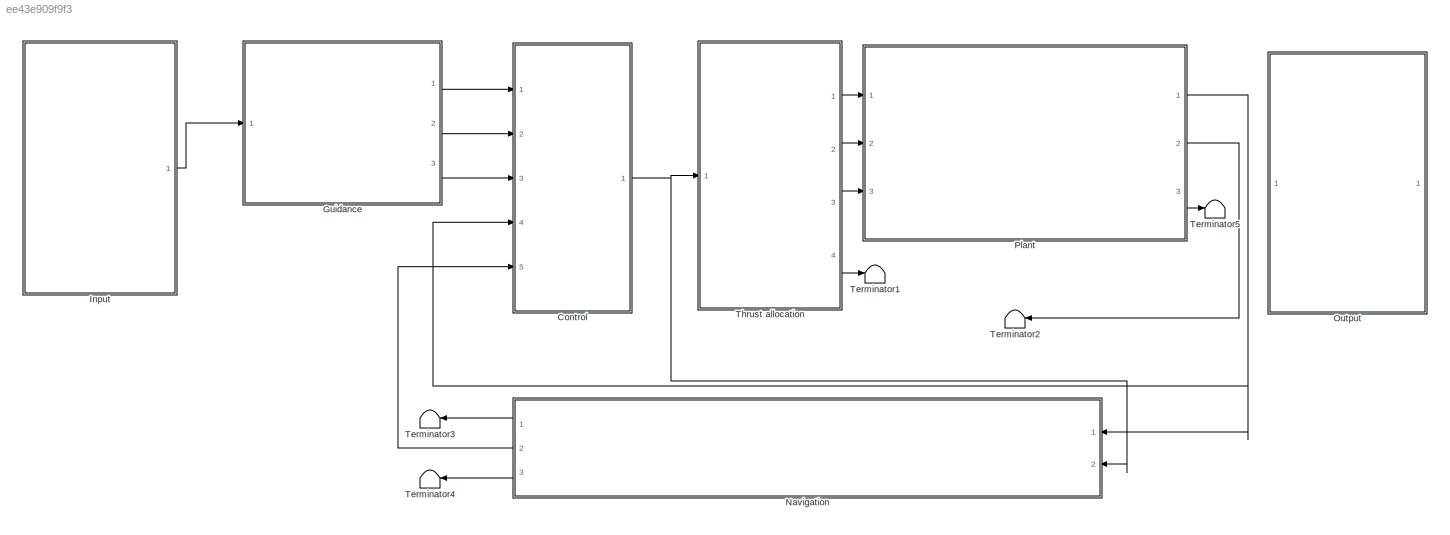
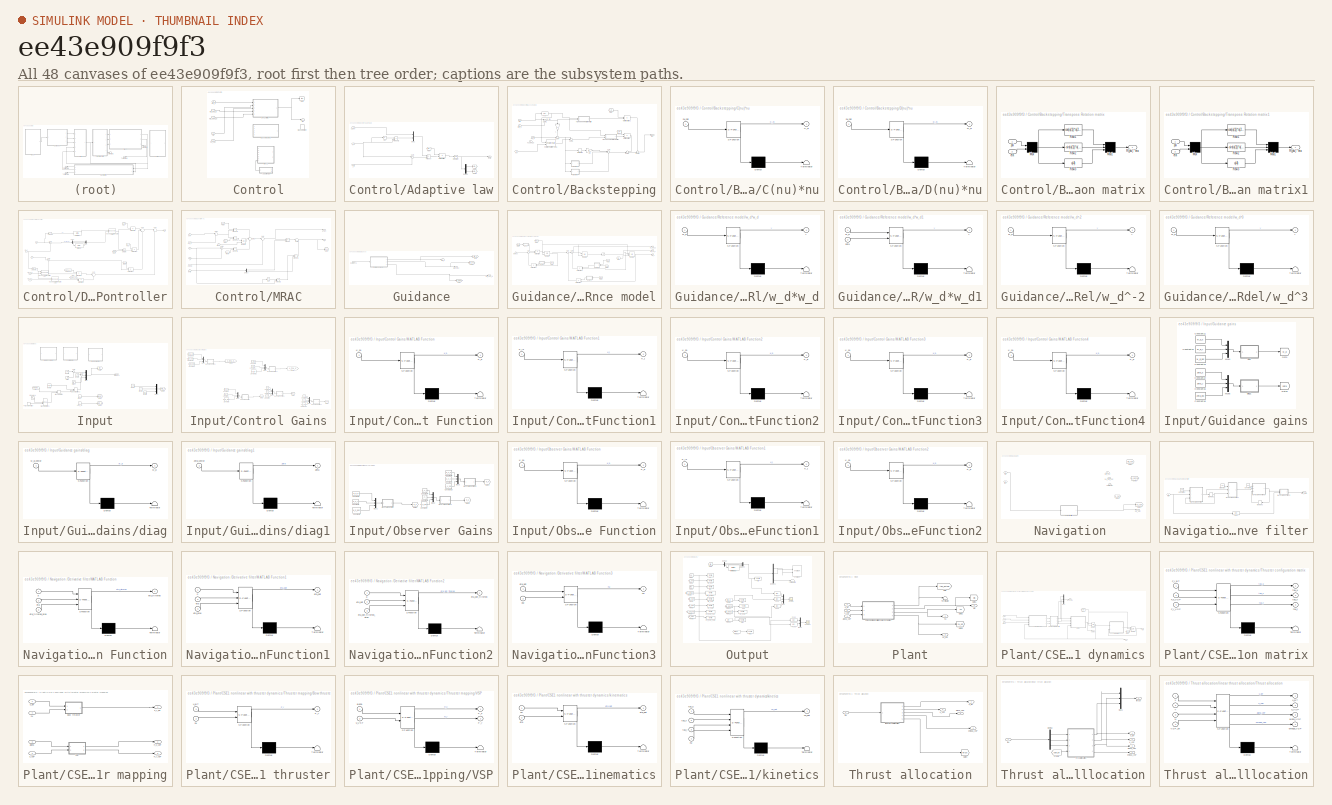
[diagram: thumbnail index - all 48 canvases of the model, root first then tree order]
MODEL slx_ee43e909f9f3
KIND model
BLOCK [SubSystem] Control
  Ports = [5, 1]
  RequestExecContextInheritance = off
BLOCK [SubSystem] Control/Adaptive law
  Commented = on
  Ports = [3, 1]
  RequestExecContextInheritance = off
BLOCK [Abs] Control/Adaptive law/Abs
  SaturateOnIntegerOverflow = off
BLOCK [Demux] Control/Adaptive law/Demux
  DisplayOption = bar
  Outputs = 2
  Ports = [1, 2]
BLOCK [From] Control/Adaptive law/From
  GotoTag = iG5
  TagVisibility = global
BLOCK [Goto] Control/Adaptive law/Goto
  GotoTag = theta_1
  TagVisibility = global
BLOCK [Goto] Control/Adaptive law/Goto1
  GotoTag = theta_2
  TagVisibility = global
BLOCK [Integrator] Control/Adaptive law/Integrator
  InitialCondition = [0.01 0.01]
  Ports = [1, 1]
BLOCK [Product] Control/Adaptive law/Matrix Multiply
  InputSameDT = off
  Multiplication = Matrix(*)
  OutDataTypeStr = Inherit: Inherit via internal rule
  Ports = [2, 1]
  RndMeth = Floor
  SaturateOnIntegerOverflow = off
BLOCK [Mux] Control/Adaptive law/Mux2
  DisplayOption = bar
  Inputs = 2
  Ports = [2, 1]
BLOCK [Product] Control/Adaptive law/Product
  InputSameDT = off
  OutDataTypeStr = Inherit: Inherit via internal rule
  Ports = [2, 1]
  RndMeth = Floor
  SaturateOnIntegerOverflow = off
BLOCK [Product] Control/Adaptive law/Product2
  InputSameDT = off
  OutDataTypeStr = Inherit: Inherit via internal rule
  Ports = [2, 1]
  RndMeth = Floor
  SaturateOnIntegerOverflow = off
BLOCK [Sum] Control/Adaptive law/Sum
  IconShape = round
  InputSameDT = off
  Inputs = |+-
  OutDataTypeStr = Inherit: Inherit via internal rule
  Ports = [2, 1]
  SaturateOnIntegerOverflow = off
BLOCK [Inport] Control/Adaptive law/a_psi
  IconDisplay = Port number
BLOCK [Inport] Control/Adaptive law/r
  IconDisplay = Port number
  Port = 2
BLOCK [Inport] Control/Adaptive law/r_d
  IconDisplay = Port number
  Port = 3
BLOCK [Outport] Control/Adaptive law/theta
  IconDisplay = Port number
BLOCK [SubSystem] Control/Backstepping
  Commented = on
  Ports = [5, 1]
  RequestExecContextInheritance = off
BLOCK [SubSystem] Control/Backstepping/C(nu)*nu
  ErrorFcn = Stateflow.Translate.translate
  PermitHierarchicalResolution = ExplicitOnly
  Ports = [1, 1]
  RequestExecContextInheritance = off
  SFBlockType = MATLAB Function
  TreatAsAtomicUnit = on
BLOCK [Demux] Control/Backstepping/C(nu)*nu/ Demux 
  Outputs = 1
  Ports = [1, 1]
BLOCK [S-Function] Control/Backstepping/C(nu)*nu/ SFunction 
  EnableBusSupport = on
  FunctionName = sf_sfun
  PortCounts = [1 2]
  Ports = [1, 2]
  Tag = Stateflow S-Function CSE1_DP 20
BLOCK [Terminator] Control/Backstepping/C(nu)*nu/ Terminator 
BLOCK [Outport] Control/Backstepping/C(nu)*nu/C_nl
  IconDisplay = Port number
BLOCK [Inport] Control/Backstepping/C(nu)*nu/nu_hat
  IconDisplay = Port number
BLOCK [SubSystem] Control/Backstepping/D(nu)*nu
  ErrorFcn = Stateflow.Translate.translate
  PermitHierarchicalResolution = ExplicitOnly
  Ports = [1, 1]
  RequestExecContextInheritance = off
  SFBlockType = MATLAB Function
  TreatAsAtomicUnit = on
BLOCK [Demux] Control/Backstepping/D(nu)*nu/ Demux 
  Outputs = 1
  Ports = [1, 1]
BLOCK [S-Function] Control/Backstepping/D(nu)*nu/ SFunction 
  EnableBusSupport = on
  FunctionName = sf_sfun
  PortCounts = [1 2]
  Ports = [1, 2]
  Tag = Stateflow S-Function CSE1_DP 21
BLOCK [Terminator] Control/Backstepping/D(nu)*nu/ Terminator 
BLOCK [Outport] Control/Backstepping/D(nu)*nu/D_nl
  IconDisplay = Port number
BLOCK [Inport] Control/Backstepping/D(nu)*nu/nu_hat
  IconDisplay = Port number
BLOCK [Derivative] Control/Backstepping/Derivative
BLOCK [Fcn] Control/Backstepping/Fcn
  Expr = u(3)
BLOCK [From] Control/Backstepping/From
  GotoTag = K_p
  TagVisibility = global
BLOCK [From] Control/Backstepping/From1
  GotoTag = K_d
  TagVisibility = global
BLOCK [Gain] Control/Backstepping/L
  Gain = L
  Multiplication = Matrix(K*u)
  OutDataTypeStr = Inherit: Inherit via internal rule
  ParamDataTypeStr = Inherit: Inherit via internal rule
  SaturateOnIntegerOverflow = off
BLOCK [Gain] Control/Backstepping/M^-1
  Gain = M
  Multiplication = Matrix(K*u)
  OutDataTypeStr = Inherit: Inherit via internal rule
  ParamDataTypeStr = Inherit: Inherit via internal rule
  SaturateOnIntegerOverflow = off
BLOCK [Product] Control/Backstepping/Matrix Multiply
  InputSameDT = off
  Multiplication = Matrix(*)
  OutDataTypeStr = Inherit: Inherit via internal rule
  Ports = [2, 1]
  RndMeth = Floor
  SaturateOnIntegerOverflow = off
BLOCK [Product] Control/Backstepping/Matrix Multiply1
  InputSameDT = off
  Multiplication = Matrix(*)
  OutDataTypeStr = Inherit: Inherit via internal rule
  Ports = [2, 1]
  RndMeth = Floor
  SaturateOnIntegerOverflow = off
BLOCK [Reference] Control/Backstepping/Rotation matrix in yaw 1  REF=marine_gnc/Models/ Kinematics/Rotation matrix  (lib defined in mdl_10d96c221ba8, mdl_45f1105420c6)
in yaw 
  Ports = [2, 1]
  SourceBlock = marine_gnc/Models/ Kinematics/Rotation matrix\nin yaw
BLOCK [Sum] Control/Backstepping/Sum
  IconShape = round
  InputSameDT = off
  Inputs = |+++
  OutDataTypeStr = Inherit: Inherit via internal rule
  Ports = [3, 1]
  SaturateOnIntegerOverflow = off
BLOCK [Sum] Control/Backstepping/Sum1
  IconShape = round
  InputSameDT = off
  Inputs = |+-
  OutDataTypeStr = Inherit: Inherit via internal rule
  Ports = [2, 1]
  SaturateOnIntegerOverflow = off
BLOCK [Sum] Control/Backstepping/Sum2
  IconShape = round
  InputSameDT = off
  Inputs = -+|
  OutDataTypeStr = Inherit: Inherit via internal rule
  Ports = [2, 1]
  SaturateOnIntegerOverflow = off
BLOCK [Sum] Control/Backstepping/Sum3
  IconShape = round
  InputSameDT = off
  Inputs = -+|
  OutDataTypeStr = Inherit: Inherit via internal rule
  Ports = [2, 1]
  SaturateOnIntegerOverflow = off
BLOCK [Sum] Control/Backstepping/Sum4
  IconShape = round
  InputSameDT = off
  Inputs = -+|
  OutDataTypeStr = Inherit: Inherit via internal rule
  Ports = [2, 1]
  SaturateOnIntegerOverflow = off
BLOCK [Sum] Control/Backstepping/Sum5
  IconShape = round
  InputSameDT = off
  Inputs = -+|
  OutDataTypeStr = Inherit: Inherit via internal rule
  Ports = [2, 1]
  SaturateOnIntegerOverflow = off
BLOCK [SubSystem] Control/Backstepping/Transpose Rotation matrix
  Ports = [2, 1]
  RequestExecContextInheritance = off
BLOCK [Mux] Control/Backstepping/Transpose Rotation matrix/Mux
  Inputs = 2
  Ports = [2, 1]
BLOCK [Mux] Control/Backstepping/Transpose Rotation matrix/Mux1
  Inputs = 3
  Ports = [3, 1]
BLOCK [Outport] Control/Backstepping/Transpose Rotation matrix/R(psi)'*eta
  IconDisplay = Port number
BLOCK [Fcn] Control/Backstepping/Transpose Rotation matrix/Row1
  Expr = cos(u(1))*u(2)+sin(u(1))*u(3)
BLOCK [Fcn] Control/Backstepping/Transpose Rotation matrix/Row2
  Expr = -sin(u(1))*u(2)+cos(u(1))*u(3)
BLOCK [Fcn] Control/Backstepping/Transpose Rotation matrix/Row3
  Expr = u(4)
BLOCK [Inport] Control/Backstepping/Transpose Rotation matrix/eta
  IconDisplay = Port number
  Port = 2
BLOCK [Inport] Control/Backstepping/Transpose Rotation matrix/psi
  IconDisplay = Port number
BLOCK [SubSystem] Control/Backstepping/Transpose Rotation matrix1
  Ports = [2, 1]
  RequestExecContextInheritance = off
BLOCK [Mux] Control/Backstepping/Transpose Rotation matrix1/Mux
  Inputs = 2
  Ports = [2, 1]
BLOCK [Mux] Control/Backstepping/Transpose Rotation matrix1/Mux1
  Inputs = 3
  Ports = [3, 1]
BLOCK [Outport] Control/Backstepping/Transpose Rotation matrix1/R(psi)'*eta
  IconDisplay = Port number
BLOCK [Fcn] Control/Backstepping/Transpose Rotation matrix1/Row1
  Expr = cos(u(1))*u(2)+sin(u(1))*u(3)
BLOCK [Fcn] Control/Backstepping/Transpose Rotation matrix1/Row2
  Expr = -sin(u(1))*u(2)+cos(u(1))*u(3)
BLOCK [Fcn] Control/Backstepping/Transpose Rotation matrix1/Row3
  Expr = u(4)
BLOCK [Inport] Control/Backstepping/Transpose Rotation matrix1/eta
  IconDisplay = Port number
  Port = 2
BLOCK [Inport] Control/Backstepping/Transpose Rotation matrix1/psi
  IconDisplay = Port number
BLOCK [Inport] Control/Backstepping/eta
  IconDisplay = Port number
  Port = 4
BLOCK [Inport] Control/Backstepping/eta_d
  IconDisplay = Port number
BLOCK [Inport] Control/Backstepping/nu
  IconDisplay = Port number
  Port = 5
BLOCK [Inport] Control/Backstepping/nu_d
  IconDisplay = Port number
  Port = 2
BLOCK [Inport] Control/Backstepping/nu_dot_d
  IconDisplay = Port number
  Port = 3
BLOCK [Outport] Control/Backstepping/tau
  IconDisplay = Port number
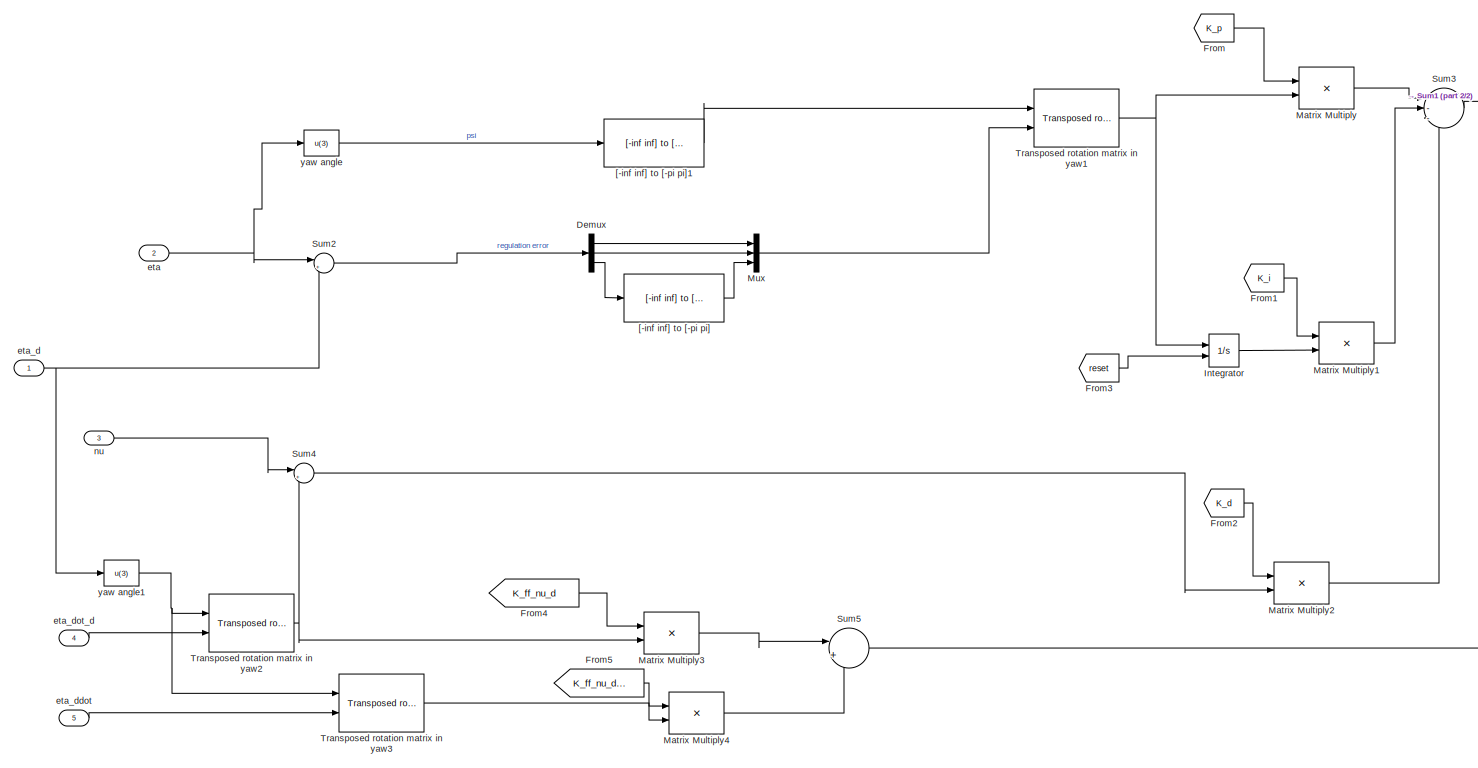
[diagram: Control/DP Controller - part 1/2, most of the canvas]
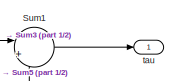
[diagram: Control/DP Controller - part 2/2, top right region]
BLOCK [SubSystem] Control/DP Controller
  Ports = [5, 1]
  RequestExecContextInheritance = off
BLOCK [Demux] Control/DP Controller/Demux
  DisplayOption = bar
  Outputs = 3
  Ports = [1, 3]
BLOCK [From] Control/DP Controller/From
  GotoTag = K_p
  TagVisibility = global
BLOCK [From] Control/DP Controller/From1
  GotoTag = K_i
  TagVisibility = global
BLOCK [From] Control/DP Controller/From2
  GotoTag = K_d
  TagVisibility = global
BLOCK [From] Control/DP Controller/From3
  GotoTag = reset
  TagVisibility = global
BLOCK [From] Control/DP Controller/From4
  GotoTag = K_ff_nu_d
  TagVisibility = global
BLOCK [From] Control/DP Controller/From5
  GotoTag = K_ff_nu_d_dot
  TagVisibility = global
BLOCK [Integrator] Control/DP Controller/Integrator
  ExternalReset = either
  Ports = [2, 1]
BLOCK [Product] Control/DP Controller/Matrix Multiply
  InputSameDT = off
  Multiplication = Matrix(*)
  OutDataTypeStr = Inherit: Inherit via internal rule
  Ports = [2, 1]
  RndMeth = Floor
  SaturateOnIntegerOverflow = off
BLOCK [Product] Control/DP Controller/Matrix Multiply1
  InputSameDT = off
  Multiplication = Matrix(*)
  OutDataTypeStr = Inherit: Inherit via internal rule
  Ports = [2, 1]
  RndMeth = Floor
  SaturateOnIntegerOverflow = off
BLOCK [Product] Control/DP Controller/Matrix Multiply2
  InputSameDT = off
  Multiplication = Matrix(*)
  OutDataTypeStr = Inherit: Inherit via internal rule
  Ports = [2, 1]
  RndMeth = Floor
  SaturateOnIntegerOverflow = off
BLOCK [Product] Control/DP Controller/Matrix Multiply3
  InputSameDT = off
  Multiplication = Matrix(*)
  OutDataTypeStr = Inherit: Inherit via internal rule
  Ports = [2, 1]
  RndMeth = Floor
  SaturateOnIntegerOverflow = off
BLOCK [Product] Control/DP Controller/Matrix Multiply4
  InputSameDT = off
  Multiplication = Matrix(*)
  OutDataTypeStr = Inherit: Inherit via internal rule
  Ports = [2, 1]
  RndMeth = Floor
  SaturateOnIntegerOverflow = off
BLOCK [Mux] Control/DP Controller/Mux
  DisplayOption = bar
  Inputs = 3
  Ports = [3, 1]
BLOCK [Sum] Control/DP Controller/Sum1
  IconShape = round
  Inputs = |++
  Ports = [2, 1]
BLOCK [Sum] Control/DP Controller/Sum2
  IconShape = round
  Inputs = |+-
  Ports = [2, 1]
BLOCK [Sum] Control/DP Controller/Sum3
  IconShape = round
  Inputs = |---
  Ports = [3, 1]
BLOCK [Sum] Control/DP Controller/Sum4
  IconShape = round
  Inputs = |+-
  Ports = [2, 1]
BLOCK [Sum] Control/DP Controller/Sum5
  IconShape = round
  Inputs = |++
  Ports = [2, 1]
BLOCK [Reference] Control/DP Controller/Transposed rotation matrix in yaw1  REF=marine_gnc/Models/ Kinematics/Transposed rotation  (lib defined in mdl_10d96c221ba8, mdl_45f1105420c6)
 matrix in yaw
  Ports = [2, 1]
  SourceBlock = marine_gnc/Models/ Kinematics/Transposed rotation\n matrix in yaw
BLOCK [Reference] Control/DP Controller/Transposed rotation matrix in yaw2  REF=marine_gnc/Models/ Kinematics/Transposed rotation  (lib defined in mdl_10d96c221ba8, mdl_45f1105420c6)
 matrix in yaw
  Ports = [2, 1]
  SourceBlock = marine_gnc/Models/ Kinematics/Transposed rotation\n matrix in yaw
BLOCK [Reference] Control/DP Controller/Transposed rotation matrix in yaw3  REF=marine_gnc/Models/ Kinematics/Transposed rotation  (lib defined in mdl_10d96c221ba8, mdl_45f1105420c6)
 matrix in yaw
  Ports = [2, 1]
  SourceBlock = marine_gnc/Models/ Kinematics/Transposed rotation\n matrix in yaw
BLOCK [Reference] Control/DP Controller/[-inf inf] to [-pi pi]  REF=marine_gnc/Utilities/Math Operations/[-inf inf] to [-pi pi]  (lib defined in mdl_10d96c221ba8, mdl_45f1105420c6)
  Ports = [1, 1]
  SourceBlock = marine_gnc/Utilities/Math Operations/[-inf inf] to [-pi pi]
  SourceType = [-inf inf] to [-pi pi]
BLOCK [Reference] Control/DP Controller/[-inf inf] to [-pi pi]1  REF=marine_gnc/Utilities/Math Operations/[-inf inf] to [-pi pi]  (lib defined in mdl_10d96c221ba8, mdl_45f1105420c6)
  Ports = [1, 1]
  SourceBlock = marine_gnc/Utilities/Math Operations/[-inf inf] to [-pi pi]
  SourceType = [-inf inf] to [-pi pi]
BLOCK [Inport] Control/DP Controller/eta
  IconDisplay = Port number
  Port = 2
BLOCK [Inport] Control/DP Controller/eta_d
  IconDisplay = Port number
BLOCK [Inport] Control/DP Controller/eta_ddot
  IconDisplay = Port number
  Port = 5
BLOCK [Inport] Control/DP Controller/eta_dot_d
  IconDisplay = Port number
  Port = 4
BLOCK [Inport] Control/DP Controller/nu
  IconDisplay = Port number
  Port = 3
BLOCK [Outport] Control/DP Controller/tau
  IconDisplay = Port number
  InitialOutput = 0
BLOCK [Fcn] Control/DP Controller/yaw angle
  Expr = u(3)
BLOCK [Fcn] Control/DP Controller/yaw angle1
  Expr = u(3)
BLOCK [Goto] Control/Goto
  GotoTag = tau
  TagVisibility = global
BLOCK [SubSystem] Control/MRAC
  Commented = on
  Ports = [7, 2]
  RequestExecContextInheritance = off
BLOCK [Abs] Control/MRAC/Abs
  SaturateOnIntegerOverflow = off
BLOCK [Demux] Control/MRAC/Demux
  DisplayOption = bar
  Outputs = 2
  Ports = [1, 2]
BLOCK [From] Control/MRAC/From
  GotoTag = K_d
  TagVisibility = global
BLOCK [From] Control/MRAC/From1
  GotoTag = K_p
  TagVisibility = global
BLOCK [From] Control/MRAC/From2
  GotoTag = K_i
  TagVisibility = global
BLOCK [Goto] Control/MRAC/Goto2
  GotoTag = tau_N
  TagVisibility = global
BLOCK [Integrator] Control/MRAC/Integrator
  ExternalReset = either
  Ports = [2, 1]
BLOCK [Outport] Control/MRAC/N
  IconDisplay = Port number
BLOCK [Product] Control/MRAC/Product
  InputSameDT = off
  OutDataTypeStr = Inherit: Inherit via internal rule
  Ports = [2, 1]
  RndMeth = Floor
  SaturateOnIntegerOverflow = off
BLOCK [Product] Control/MRAC/Product1
  InputSameDT = off
  OutDataTypeStr = Inherit: Inherit via internal rule
  Ports = [2, 1]
  RndMeth = Floor
  SaturateOnIntegerOverflow = off
BLOCK [Product] Control/MRAC/Product2
  InputSameDT = off
  OutDataTypeStr = Inherit: Inherit via internal rule
  Ports = [2, 1]
  RndMeth = Floor
  SaturateOnIntegerOverflow = off
BLOCK [Product] Control/MRAC/Product3
  InputSameDT = off
  OutDataTypeStr = Inherit: Inherit via internal rule
  Ports = [2, 1]
  RndMeth = Floor
  SaturateOnIntegerOverflow = off
BLOCK [Product] Control/MRAC/Product4
  InputSameDT = off
  OutDataTypeStr = Inherit: Inherit via internal rule
  Ports = [2, 1]
  RndMeth = Floor
  SaturateOnIntegerOverflow = off
BLOCK [Product] Control/MRAC/Product5
  InputSameDT = off
  OutDataTypeStr = Inherit: Inherit via internal rule
  Ports = [2, 1]
  RndMeth = Floor
  SaturateOnIntegerOverflow = off
BLOCK [Sum] Control/MRAC/Sum
  IconShape = round
  InputSameDT = off
  Inputs = |-+
  OutDataTypeStr = Inherit: Inherit via internal rule
  Ports = [2, 1]
  SaturateOnIntegerOverflow = off
BLOCK [Sum] Control/MRAC/Sum1
  IconShape = round
  InputSameDT = off
  Inputs = |+-
  OutDataTypeStr = Inherit: Inherit via internal rule
  Ports = [2, 1]
  SaturateOnIntegerOverflow = off
BLOCK [Sum] Control/MRAC/Sum2
  IconShape = round
  InputSameDT = off
  Inputs = |+-
  OutDataTypeStr = Inherit: Inherit via internal rule
  Ports = [2, 1]
  SaturateOnIntegerOverflow = off
BLOCK [Sum] Control/MRAC/Sum3
  IconShape = round
  InputSameDT = off
  Inputs = +|+|+
  OutDataTypeStr = Inherit: Inherit via internal rule
  Ports = [3, 1]
  SaturateOnIntegerOverflow = off
BLOCK [Sum] Control/MRAC/Sum4
  IconShape = round
  InputSameDT = off
  Inputs = |++
  OutDataTypeStr = Inherit: Inherit via internal rule
  Ports = [2, 1]
  SaturateOnIntegerOverflow = off
BLOCK [Outport] Control/MRAC/a_psi
  IconDisplay = Port number
  Port = 2
BLOCK [Inport] Control/MRAC/psi
  IconDisplay = Port number
  Port = 5
BLOCK [Inport] Control/MRAC/psi_d
  IconDisplay = Port number
  Port = 2
BLOCK [Inport] Control/MRAC/r
  IconDisplay = Port number
  Port = 6
BLOCK [Inport] Control/MRAC/r_d
  IconDisplay = Port number
  Port = 3
BLOCK [Inport] Control/MRAC/r_dot_d
  IconDisplay = Port number
  Port = 4
BLOCK [Inport] Control/MRAC/reset
  IconDisplay = Port number
BLOCK [Inport] Control/MRAC/theta
  IconDisplay = Port number
  Port = 7
BLOCK [ManualSwitch] Control/Manual Switch
  Commented = on
BLOCK [Inport] Control/eta
  IconDisplay = Port number
  Port = 4
BLOCK [Inport] Control/eta_d
  IconDisplay = Port number
BLOCK [Inport] Control/eta_ddot_d
  IconDisplay = Port number
  Port = 3
BLOCK [Inport] Control/eta_dot_d
  IconDisplay = Port number
  Port = 2
BLOCK [Inport] Control/nu_hat
  IconDisplay = Port number
  Port = 5
BLOCK [Outport] Control/tau
  IconDisplay = Port number
BLOCK [SubSystem] Guidance
  Ports = [1, 3]
  RequestExecContextInheritance = off
BLOCK [Goto] Guidance/Goto
  GotoTag = eta_d
  TagVisibility = global
BLOCK [Goto] Guidance/Goto1
  GotoTag = eta_dot_d
  TagVisibility = global
BLOCK [Goto] Guidance/Goto2
  GotoTag = eta_ddot_d
  TagVisibility = global
BLOCK [Inport] Guidance/Reference 
  IconDisplay = Port number
BLOCK [SubSystem] Guidance/Reference model
  Ports = [1, 3]
  RequestExecContextInheritance = off
BLOCK [Saturate] Guidance/Reference model/       
  Commented = through
  InputPortMap = u0
  LowerLimit = -v_max
  Ports = [1, 1]
  UpperLimit = v_max
BLOCK [From] Guidance/Reference model/From
  GotoTag = eta
  TagVisibility = global
BLOCK [From] Guidance/Reference model/From1
  GotoTag = reset
  TagVisibility = global
BLOCK [From] Guidance/Reference model/From2
  GotoTag = w_d
  TagVisibility = global
BLOCK [From] Guidance/Reference model/From3
  GotoTag = w_d
  TagVisibility = global
BLOCK [From] Guidance/Reference model/From4
  GotoTag = w_d
  TagVisibility = global
BLOCK [From] Guidance/Reference model/From5
  GotoTag = w_d
  TagVisibility = global
BLOCK [From] Guidance/Reference model/From6
  GotoTag = zeta
  TagVisibility = global
BLOCK [Integrator] Guidance/Reference model/Integrator1
  ExternalReset = either
  InitialConditionSource = external
  Ports = [3, 1]
BLOCK [Integrator] Guidance/Reference model/Integrator2
  ExternalReset = either
  Ports = [2, 1]
BLOCK [Integrator] Guidance/Reference model/Integrator3
  ExternalReset = either
  Ports = [2, 1]
BLOCK [Product] Guidance/Reference model/Matrix Multiply
  InputSameDT = off
  Multiplication = Matrix(*)
  OutDataTypeStr = Inherit: Inherit via internal rule
  Ports = [2, 1]
  RndMeth = Floor
  SaturateOnIntegerOverflow = off
BLOCK [Product] Guidance/Reference model/Matrix Multiply1
  InputSameDT = off
  Multiplication = Matrix(*)
  OutDataTypeStr = Inherit: Inherit via internal rule
  Ports = [2, 1]
  RndMeth = Floor
  SaturateOnIntegerOverflow = off
BLOCK [Product] Guidance/Reference model/Matrix Multiply2
  InputSameDT = off
  Multiplication = Matrix(*)
  OutDataTypeStr = Inherit: Inherit via internal rule
  Ports = [2, 1]
  RndMeth = Floor
  SaturateOnIntegerOverflow = off
BLOCK [Product] Guidance/Reference model/Matrix Multiply5
  InputSameDT = off
  Multiplication = Matrix(*)
  OutDataTypeStr = Inherit: Inherit via internal rule
  Ports = [2, 1]
  RndMeth = Floor
  SaturateOnIntegerOverflow = off
BLOCK [Sum] Guidance/Reference model/Sum
  IconShape = round
  InputSameDT = off
  Inputs = |+-
  OutDataTypeStr = Inherit: Inherit via internal rule
  Ports = [2, 1]
  SaturateOnIntegerOverflow = off
BLOCK [Sum] Guidance/Reference model/Sum2
  IconShape = round
  Inputs = |+-
  Ports = [2, 1]
BLOCK [Sum] Guidance/Reference model/Sum5
  IconShape = round
  Inputs = |+-
  Ports = [2, 1]
BLOCK [Outport] Guidance/Reference model/eta_d
  IconDisplay = Port number
  InitialOutput = 0
BLOCK [Outport] Guidance/Reference model/eta_ddot_d
  IconDisplay = Port number
  InitialOutput = 0
  Port = 3
BLOCK [Outport] Guidance/Reference model/eta_dot_d
  IconDisplay = Port number
  InitialOutput = 0
  Port = 2
BLOCK [Inport] Guidance/Reference model/reference
  IconDisplay = Port number
BLOCK [SubSystem] Guidance/Reference model/w_d*w_d
  ErrorFcn = Stateflow.Translate.translate
  PermitHierarchicalResolution = ExplicitOnly
  Ports = [1, 1]
  RequestExecContextInheritance = off
  SFBlockType = MATLAB Function
  TreatAsAtomicUnit = on
BLOCK [Demux] Guidance/Reference model/w_d*w_d/ Demux 
  Outputs = 1
  Ports = [1, 1]
BLOCK [S-Function] Guidance/Reference model/w_d*w_d/ SFunction 
  EnableBusSupport = on
  FunctionName = sf_sfun
  PortCounts = [1 2]
  Ports = [1, 2]
  Tag = Stateflow S-Function CSE1_DP 3
BLOCK [Terminator] Guidance/Reference model/w_d*w_d/ Terminator 
BLOCK [Inport] Guidance/Reference model/w_d*w_d/w_d
  IconDisplay = Port number
BLOCK [Outport] Guidance/Reference model/w_d*w_d/y
  IconDisplay = Port number
BLOCK [SubSystem] Guidance/Reference model/w_d*w_d1
  ErrorFcn = Stateflow.Translate.translate
  PermitHierarchicalResolution = ExplicitOnly
  Ports = [2, 1]
  RequestExecContextInheritance = off
  SFBlockType = MATLAB Function
  TreatAsAtomicUnit = on
BLOCK [Demux] Guidance/Reference model/w_d*w_d1/ Demux 
  Outputs = 1
  Ports = [1, 1]
BLOCK [S-Function] Guidance/Reference model/w_d*w_d1/ SFunction 
  EnableBusSupport = on
  FunctionName = sf_sfun
  PortCounts = [2 2]
  Ports = [2, 2]
  Tag = Stateflow S-Function CSE1_DP 4
BLOCK [Terminator] Guidance/Reference model/w_d*w_d1/ Terminator 
BLOCK [Inport] Guidance/Reference model/w_d*w_d1/w_d
  IconDisplay = Port number
BLOCK [Outport] Guidance/Reference model/w_d*w_d1/y
  IconDisplay = Port number
BLOCK [Inport] Guidance/Reference model/w_d*w_d1/zeta
  IconDisplay = Port number
  Port = 2
BLOCK [SubSystem] Guidance/Reference model/w_d^-2
  ErrorFcn = Stateflow.Translate.translate
  PermitHierarchicalResolution = ExplicitOnly
  Ports = [1, 1]
  RequestExecContextInheritance = off
  SFBlockType = MATLAB Function
  TreatAsAtomicUnit = on
BLOCK [Demux] Guidance/Reference model/w_d^-2/ Demux 
  Outputs = 1
  Ports = [1, 1]
BLOCK [S-Function] Guidance/Reference model/w_d^-2/ SFunction 
  EnableBusSupport = on
  FunctionName = sf_sfun
  PortCounts = [1 2]
  Ports = [1, 2]
  Tag = Stateflow S-Function CSE1_DP 2
BLOCK [Terminator] Guidance/Reference model/w_d^-2/ Terminator 
BLOCK [Inport] Guidance/Reference model/w_d^-2/w_d
  IconDisplay = Port number
BLOCK [Outport] Guidance/Reference model/w_d^-2/y
  IconDisplay = Port number
BLOCK [SubSystem] Guidance/Reference model/w_d^3
  ErrorFcn = Stateflow.Translate.translate
  PermitHierarchicalResolution = ExplicitOnly
  Ports = [1, 1]
  RequestExecContextInheritance = off
  SFBlockType = MATLAB Function
  TreatAsAtomicUnit = on
BLOCK [Demux] Guidance/Reference model/w_d^3/ Demux 
  Outputs = 1
  Ports = [1, 1]
BLOCK [S-Function] Guidance/Reference model/w_d^3/ SFunction 
  EnableBusSupport = on
  FunctionName = sf_sfun
  PortCounts = [1 2]
  Ports = [1, 2]
  Tag = Stateflow S-Function CSE1_DP 1
BLOCK [Terminator] Guidance/Reference model/w_d^3/ Terminator 
BLOCK [Inport] Guidance/Reference model/w_d^3/w_d
  IconDisplay = Port number
BLOCK [Outport] Guidance/Reference model/w_d^3/y
  IconDisplay = Port number
BLOCK [Outport] Guidance/eta_d
  IconDisplay = Port number
BLOCK [Outport] Guidance/eta_ddot_d
  IconDisplay = Port number
  Port = 3
BLOCK [Outport] Guidance/eta_dot_d
  IconDisplay = Port number
  Port = 2
BLOCK [SubSystem] Input
  Ports = [0, 1]
  RequestExecContextInheritance = off
BLOCK [SubSystem] Input/Control Gains
  Ports = []
  RequestExecContextInheritance = off
BLOCK [Constant] Input/Control Gains/Constant1
  Value = K_p_x
BLOCK [Constant] Input/Control Gains/Constant10
  Value = K_d_psi
BLOCK [Constant] Input/Control Gains/Constant11
  Value = K_ff_v
BLOCK [Constant] Input/Control Gains/Constant12
  Value = K_ff_r
BLOCK [Constant] Input/Control Gains/Constant13
  Value = K_ff_v_dot
BLOCK [Constant] Input/Control Gains/Constant14
  Value = K_ff_r_dot
BLOCK [Constant] Input/Control Gains/Constant15
  Value = K_ff_u_dot
BLOCK [Constant] Input/Control Gains/Constant2
  Value = K_p_y
BLOCK [Constant] Input/Control Gains/Constant3
  Value = K_p_psi
BLOCK [Constant] Input/Control Gains/Constant4
  Value = K_i_x
BLOCK [Constant] Input/Control Gains/Constant5
  Value = K_i_y
BLOCK [Constant] Input/Control Gains/Constant6
  Value = K_ff_u
BLOCK [Constant] Input/Control Gains/Constant7
  Value = K_i_psi
BLOCK [Constant] Input/Control Gains/Constant8
  Value = K_d_x
BLOCK [Constant] Input/Control Gains/Constant9
  Value = K_d_y
BLOCK [Goto] Input/Control Gains/Goto1
  GotoTag = K_ff_nu_d
  TagVisibility = global
BLOCK [Goto] Input/Control Gains/Goto2
  GotoTag = K_p
  TagVisibility = global
BLOCK [Goto] Input/Control Gains/Goto3
  GotoTag = K_i
  TagVisibility = global
BLOCK [Goto] Input/Control Gains/Goto4
  GotoTag = K_d
  TagVisibility = global
BLOCK [Goto] Input/Control Gains/Goto5
  GotoTag = K_ff_nu_d_dot
  TagVisibility = global
BLOCK [SubSystem] Input/Control Gains/MATLAB Function
  ErrorFcn = Stateflow.Translate.translate
  PermitHierarchicalResolution = ExplicitOnly
  Ports = [1, 1]
  RequestExecContextInheritance = off
  SFBlockType = MATLAB Function
  TreatAsAtomicUnit = on
BLOCK [Demux] Input/Control Gains/MATLAB Function/ Demux 
  Outputs = 1
  Ports = [1, 1]
BLOCK [S-Function] Input/Control Gains/MATLAB Function/ SFunction 
  EnableBusSupport = on
  FunctionName = sf_sfun
  PortCounts = [1 2]
  Ports = [1, 2]
  Tag = Stateflow S-Function CSE1_DP 16
BLOCK [Terminator] Input/Control Gains/MATLAB Function/ Terminator 
BLOCK [Outport] Input/Control Gains/MATLAB Function/K_p
  IconDisplay = Port number
BLOCK [Inport] Input/Control Gains/MATLAB Function/K_p1
  IconDisplay = Port number
BLOCK [SubSystem] Input/Control Gains/MATLAB Function1
  ErrorFcn = Stateflow.Translate.translate
  PermitHierarchicalResolution = ExplicitOnly
  Ports = [1, 1]
  RequestExecContextInheritance = off
  SFBlockType = MATLAB Function
  TreatAsAtomicUnit = on
BLOCK [Demux] Input/Control Gains/MATLAB Function1/ Demux 
  Outputs = 1
  Ports = [1, 1]
BLOCK [S-Function] Input/Control Gains/MATLAB Function1/ SFunction 
  EnableBusSupport = on
  FunctionName = sf_sfun
  PortCounts = [1 2]
  Ports = [1, 2]
  Tag = Stateflow S-Function CSE1_DP 17
BLOCK [Terminator] Input/Control Gains/MATLAB Function1/ Terminator 
BLOCK [Outport] Input/Control Gains/MATLAB Function1/K_i
  IconDisplay = Port number
BLOCK [Inport] Input/Control Gains/MATLAB Function1/K_i1
  IconDisplay = Port number
BLOCK [SubSystem] Input/Control Gains/MATLAB Function2
  ErrorFcn = Stateflow.Translate.translate
  PermitHierarchicalResolution = ExplicitOnly
  Ports = [1, 1]
  RequestExecContextInheritance = off
  SFBlockType = MATLAB Function
  TreatAsAtomicUnit = on
BLOCK [Demux] Input/Control Gains/MATLAB Function2/ Demux 
  Outputs = 1
  Ports = [1, 1]
BLOCK [S-Function] Input/Control Gains/MATLAB Function2/ SFunction 
  EnableBusSupport = on
  FunctionName = sf_sfun
  PortCounts = [1 2]
  Ports = [1, 2]
  Tag = Stateflow S-Function CSE1_DP 18
BLOCK [Terminator] Input/Control Gains/MATLAB Function2/ Terminator 
BLOCK [Outport] Input/Control Gains/MATLAB Function2/K_d
  IconDisplay = Port number
BLOCK [Inport] Input/Control Gains/MATLAB Function2/K_d1
  IconDisplay = Port number
BLOCK [SubSystem] Input/Control Gains/MATLAB Function3
  ErrorFcn = Stateflow.Translate.translate
  PermitHierarchicalResolution = ExplicitOnly
  Ports = [1, 1]
  RequestExecContextInheritance = off
  SFBlockType = MATLAB Function
  TreatAsAtomicUnit = on
BLOCK [Demux] Input/Control Gains/MATLAB Function3/ Demux 
  Outputs = 1
  Ports = [1, 1]
BLOCK [S-Function] Input/Control Gains/MATLAB Function3/ SFunction 
  EnableBusSupport = on
  FunctionName = sf_sfun
  PortCounts = [1 2]
  Ports = [1, 2]
  Tag = Stateflow S-Function CSE1_DP 27
BLOCK [Terminator] Input/Control Gains/MATLAB Function3/ Terminator 
BLOCK [Outport] Input/Control Gains/MATLAB Function3/K_p
  IconDisplay = Port number
BLOCK [Inport] Input/Control Gains/MATLAB Function3/K_p1
  IconDisplay = Port number
BLOCK [SubSystem] Input/Control Gains/MATLAB Function4
  ErrorFcn = Stateflow.Translate.translate
  PermitHierarchicalResolution = ExplicitOnly
  Ports = [1, 1]
  RequestExecContextInheritance = off
  SFBlockType = MATLAB Function
  TreatAsAtomicUnit = on
BLOCK [Demux] Input/Control Gains/MATLAB Function4/ Demux 
  Outputs = 1
  Ports = [1, 1]
BLOCK [S-Function] Input/Control Gains/MATLAB Function4/ SFunction 
  EnableBusSupport = on
  FunctionName = sf_sfun
  PortCounts = [1 2]
  Ports = [1, 2]
  Tag = Stateflow S-Function CSE1_DP 28
BLOCK [Terminator] Input/Control Gains/MATLAB Function4/ Terminator 
BLOCK [Outport] Input/Control Gains/MATLAB Function4/K_p
  IconDisplay = Port number
BLOCK [Inport] Input/Control Gains/MATLAB Function4/K_p1
  IconDisplay = Port number
BLOCK [Mux] Input/Control Gains/Mux1
  DisplayOption = bar
  Inputs = 3
  Ports = [3, 1]
BLOCK [Mux] Input/Control Gains/Mux2
  DisplayOption = bar
  Inputs = 3
  Ports = [3, 1]
BLOCK [Mux] Input/Control Gains/Mux3
  DisplayOption = bar
  Inputs = 3
  Ports = [3, 1]
BLOCK [Mux] Input/Control Gains/Mux4
  DisplayOption = bar
  Inputs = 3
  Ports = [3, 1]
BLOCK [Mux] Input/Control Gains/Mux5
  DisplayOption = bar
  Inputs = 3
  Ports = [3, 1]
BLOCK [Goto] Input/Goto
  GotoTag = ref
  TagVisibility = global
BLOCK [Goto] Input/Goto1
  GotoTag = eta_0
  TagVisibility = global
BLOCK [Goto] Input/Goto3
  GotoTag = reset
  TagVisibility = global
BLOCK [Goto] Input/Goto4
  GotoTag = VSP_on
  TagVisibility = global
BLOCK [SubSystem] Input/Guidance gains
  Ports = []
  RequestExecContextInheritance = off
BLOCK [Constant] Input/Guidance gains/Constant11
  Value = w_d_x
BLOCK [Constant] Input/Guidance gains/Constant12
  Value = w_d_y
BLOCK [Constant] Input/Guidance gains/Constant13
  Value = w_d_psi
BLOCK [Constant] Input/Guidance gains/Constant14
  Value = zeta_x
BLOCK [Constant] Input/Guidance gains/Constant15
  Value = zeta_y
BLOCK [Constant] Input/Guidance gains/Constant16
  Value = zeta_psi
BLOCK [Goto] Input/Guidance gains/Goto
  GotoTag = w_d
  TagVisibility = global
BLOCK [Goto] Input/Guidance gains/Goto1
  GotoTag = zeta
  TagVisibility = global
BLOCK [Mux] Input/Guidance gains/Mux4
  DisplayOption = bar
  Inputs = 3
  Ports = [3, 1]
BLOCK [Mux] Input/Guidance gains/Mux5
  DisplayOption = bar
  Inputs = 3
  Ports = [3, 1]
BLOCK [SubSystem] Input/Guidance gains/diag
  ErrorFcn = Stateflow.Translate.translate
  PermitHierarchicalResolution = ExplicitOnly
  Ports = [1, 1]
  RequestExecContextInheritance = off
  SFBlockType = MATLAB Function
  TreatAsAtomicUnit = on
BLOCK [Demux] Input/Guidance gains/diag/ Demux 
  Outputs = 1
  Ports = [1, 1]
BLOCK [S-Function] Input/Guidance gains/diag/ SFunction 
  EnableBusSupport = on
  FunctionName = sf_sfun
  PortCounts = [1 2]
  Ports = [1, 2]
  Tag = Stateflow S-Function CSE1_DP 24
BLOCK [Terminator] Input/Guidance gains/diag/ Terminator 
BLOCK [Outport] Input/Guidance gains/diag/w_d
  IconDisplay = Port number
BLOCK [Inport] Input/Guidance gains/diag/w_d_vector
  IconDisplay = Port number
BLOCK [SubSystem] Input/Guidance gains/diag1
  ErrorFcn = Stateflow.Translate.translate
  PermitHierarchicalResolution = ExplicitOnly
  Ports = [1, 1]
  RequestExecContextInheritance = off
  SFBlockType = MATLAB Function
  TreatAsAtomicUnit = on
BLOCK [Demux] Input/Guidance gains/diag1/ Demux 
  Outputs = 1
  Ports = [1, 1]
BLOCK [S-Function] Input/Guidance gains/diag1/ SFunction 
  EnableBusSupport = on
  FunctionName = sf_sfun
  PortCounts = [1 2]
  Ports = [1, 2]
  Tag = Stateflow S-Function CSE1_DP 25
BLOCK [Terminator] Input/Guidance gains/diag1/ Terminator 
BLOCK [Outport] Input/Guidance gains/diag1/Zeta
  IconDisplay = Port number
BLOCK [Inport] Input/Guidance gains/diag1/zeta_vector
  IconDisplay = Port number
BLOCK [ManualSwitch] Input/Manual Switch
  CurrentSetting = 0
BLOCK [ManualSwitch] Input/Manual Switch1
  CurrentSetting = 0
BLOCK [ManualSwitch] Input/Manual Switch2
  CurrentSetting = 0
BLOCK [Mux] Input/Mux
  DisplayOption = bar
  Inputs = 3
  Ports = [3, 1]
BLOCK [Mux] Input/Mux1
  DisplayOption = bar
  Inputs = 3
  Ports = [3, 1]
BLOCK [SubSystem] Input/Observer Gains
  Ports = []
  RequestExecContextInheritance = off
BLOCK [Constant] Input/Observer Gains/Constant1
  Value = K_2_x
BLOCK [Constant] Input/Observer Gains/Constant10
  Value = K_4_psi
BLOCK [Constant] Input/Observer Gains/Constant2
  Value = K_2_y
BLOCK [Constant] Input/Observer Gains/Constant3
  Value = K_2_psi
BLOCK [Constant] Input/Observer Gains/Constant4
  Value = K_3_x
BLOCK [Constant] Input/Observer Gains/Constant5
  Value = K_3_y
BLOCK [Constant] Input/Observer Gains/Constant7
  Value = K_3_psi
BLOCK [Constant] Input/Observer Gains/Constant8
  Value = K_4_x
BLOCK [Constant] Input/Observer Gains/Constant9
  Value = K_4_y
BLOCK [Goto] Input/Observer Gains/Goto2
  GotoTag = K_2
  TagVisibility = global
BLOCK [Goto] Input/Observer Gains/Goto3
  GotoTag = K_3
  TagVisibility = global
BLOCK [Goto] Input/Observer Gains/Goto4
  GotoTag = K_4
  TagVisibility = global
BLOCK [SubSystem] Input/Observer Gains/MATLAB Function
  ErrorFcn = Stateflow.Translate.translate
  PermitHierarchicalResolution = ExplicitOnly
  Ports = [1, 1]
  RequestExecContextInheritance = off
  SFBlockType = MATLAB Function
  TreatAsAtomicUnit = on
BLOCK [Demux] Input/Observer Gains/MATLAB Function/ Demux 
  Outputs = 1
  Ports = [1, 1]
BLOCK [S-Function] Input/Observer Gains/MATLAB Function/ SFunction 
  EnableBusSupport = on
  FunctionName = sf_sfun
  PortCounts = [1 2]
  Ports = [1, 2]
  Tag = Stateflow S-Function CSE1_DP 22
BLOCK [Terminator] Input/Observer Gains/MATLAB Function/ Terminator 
BLOCK [Outport] Input/Observer Gains/MATLAB Function/K_p
  IconDisplay = Port number
BLOCK [Inport] Input/Observer Gains/MATLAB Function/K_p1
  IconDisplay = Port number
BLOCK [SubSystem] Input/Observer Gains/MATLAB Function1
  ErrorFcn = Stateflow.Translate.translate
  PermitHierarchicalResolution = ExplicitOnly
  Ports = [1, 1]
  RequestExecContextInheritance = off
  SFBlockType = MATLAB Function
  TreatAsAtomicUnit = on
BLOCK [Demux] Input/Observer Gains/MATLAB Function1/ Demux 
  Outputs = 1
  Ports = [1, 1]
BLOCK [S-Function] Input/Observer Gains/MATLAB Function1/ SFunction 
  EnableBusSupport = on
  FunctionName = sf_sfun
  PortCounts = [1 2]
  Ports = [1, 2]
  Tag = Stateflow S-Function CSE1_DP 23
BLOCK [Terminator] Input/Observer Gains/MATLAB Function1/ Terminator 
BLOCK [Outport] Input/Observer Gains/MATLAB Function1/K_i
  IconDisplay = Port number
BLOCK [Inport] Input/Observer Gains/MATLAB Function1/K_i1
  IconDisplay = Port number
BLOCK [SubSystem] Input/Observer Gains/MATLAB Function2
  ErrorFcn = Stateflow.Translate.translate
  PermitHierarchicalResolution = ExplicitOnly
  Ports = [1, 1]
  RequestExecContextInheritance = off
  SFBlockType = MATLAB Function
  TreatAsAtomicUnit = on
BLOCK [Demux] Input/Observer Gains/MATLAB Function2/ Demux 
  Outputs = 1
  Ports = [1, 1]
BLOCK [S-Function] Input/Observer Gains/MATLAB Function2/ SFunction 
  EnableBusSupport = on
  FunctionName = sf_sfun
  PortCounts = [1 2]
  Ports = [1, 2]
  Tag = Stateflow S-Function CSE1_DP 26
BLOCK [Terminator] Input/Observer Gains/MATLAB Function2/ Terminator 
BLOCK [Outport] Input/Observer Gains/MATLAB Function2/K_d
  IconDisplay = Port number
BLOCK [Inport] Input/Observer Gains/MATLAB Function2/K_d1
  IconDisplay = Port number
BLOCK [Mux] Input/Observer Gains/Mux1
  DisplayOption = bar
  Inputs = 3
  Ports = [3, 1]
BLOCK [Mux] Input/Observer Gains/Mux2
  DisplayOption = bar
  Inputs = 3
  Ports = [3, 1]
BLOCK [Mux] Input/Observer Gains/Mux3
  DisplayOption = bar
  Inputs = 3
  Ports = [3, 1]
BLOCK [DiscretePulseGenerator] Input/Pulse Generator
  Amplitude = pi*0.8
  Period = 30
  Ports = [0, 1]
  PulseType = Time based
  PulseWidth = 50
BLOCK [Sin] Input/Sine Wave
  Amplitude = pi/2
  Frequency = 0.2
  Ports = [0, 1]
  SampleTime = 0
BLOCK [Step] Input/Step
  After = 2
  SampleTime = 0
  Time = 40
BLOCK [Step] Input/Step1
  After = 2
  SampleTime = 0
  Time = 80
BLOCK [Sum] Input/Sum
  IconShape = round
  InputSameDT = off
  Inputs = |++
  OutDataTypeStr = Inherit: Inherit via internal rule
  Ports = [2, 1]
  SaturateOnIntegerOverflow = off
BLOCK [Sum] Input/Sum1
  IconShape = round
  InputSameDT = off
  Inputs = |++
  OutDataTypeStr = Inherit: Inherit via internal rule
  Ports = [2, 1]
  SaturateOnIntegerOverflow = off
BLOCK [Constant] Input/VSP_0n
BLOCK [FromWorkspace] Input/ref
  Commented = on
  SampleTime = 0
  VariableName = oculus_ref
  ZeroCross = on
BLOCK [Outport] Input/reference
  IconDisplay = Port number
BLOCK [Constant] Input/reset
  Value = 0
BLOCK [Constant] Input/reset1
  Value = x_ref
BLOCK [Constant] Input/reset2
  Value = y_ref
BLOCK [Constant] Input/reset3
  Value = psi_ref
BLOCK [Constant] Input/reset4
  Value = x_0
BLOCK [Constant] Input/reset5
  Value = y_0
BLOCK [Constant] Input/reset6
  Value = psi_0
BLOCK [SubSystem] Navigation 
  Ports = [2, 3]
  RequestExecContextInheritance = off
BLOCK [SubSystem] Navigation /Derivative filter
  Ports = [1, 1]
  RequestExecContextInheritance = off
BLOCK [Constant] Navigation /Derivative filter/Constant
  Value = 0.05
BLOCK [Constant] Navigation /Derivative filter/Constant2
  Value = 0.01
BLOCK [Fcn] Navigation /Derivative filter/Fcn
  Expr = u(3)
BLOCK [SubSystem] Navigation /Derivative filter/MATLAB Function
  ErrorFcn = Stateflow.Translate.translate
  PermitHierarchicalResolution = ExplicitOnly
  Ports = [3, 1]
  RequestExecContextInheritance = off
  SFBlockType = MATLAB Function
  TreatAsAtomicUnit = on
BLOCK [Demux] Navigation /Derivative filter/MATLAB Function/ Demux 
  Outputs = 1
  Ports = [1, 1]
BLOCK [S-Function] Navigation /Derivative filter/MATLAB Function/ SFunction 
  EnableBusSupport = on
  FunctionName = sf_sfun
  PortCounts = [3 2]
  Ports = [3, 2]
  Tag = Stateflow S-Function CSE1_DP 29
BLOCK [Terminator] Navigation /Derivative filter/MATLAB Function/ Terminator 
BLOCK [Inport] Navigation /Derivative filter/MATLAB Function/a
  IconDisplay = Port number
BLOCK [Inport] Navigation /Derivative filter/MATLAB Function/eta
  IconDisplay = Port number
  Port = 2
BLOCK [Outport] Navigation /Derivative filter/MATLAB Function/eta_filtered
  IconDisplay = Port number
BLOCK [Inport] Navigation /Derivative filter/MATLAB Function/eta_filtered_prev
  IconDisplay = Port number
  Port = 3
BLOCK [SubSystem] Navigation /Derivative filter/MATLAB Function1
  ErrorFcn = Stateflow.Translate.translate
  PermitHierarchicalResolution = ExplicitOnly
  Ports = [3, 1]
  RequestExecContextInheritance = off
  SFBlockType = MATLAB Function
  TreatAsAtomicUnit = on
BLOCK [Demux] Navigation /Derivative filter/MATLAB Function1/ Demux 
  Outputs = 1
  Ports = [1, 1]
BLOCK [S-Function] Navigation /Derivative filter/MATLAB Function1/ SFunction 
  EnableBusSupport = on
  FunctionName = sf_sfun
  PortCounts = [3 2]
  Ports = [3, 2]
  Tag = Stateflow S-Function CSE1_DP 30
BLOCK [Terminator] Navigation /Derivative filter/MATLAB Function1/ Terminator 
BLOCK [Inport] Navigation /Derivative filter/MATLAB Function1/eta
  IconDisplay = Port number
  Port = 2
BLOCK [Outport] Navigation /Derivative filter/MATLAB Function1/eta_dot
  IconDisplay = Port number
BLOCK [Inport] Navigation /Derivative filter/MATLAB Function1/eta_prev
  IconDisplay = Port number
  Port = 3
BLOCK [Inport] Navigation /Derivative filter/MATLAB Function1/h
  IconDisplay = Port number
BLOCK [SubSystem] Navigation /Derivative filter/MATLAB Function2
  ErrorFcn = Stateflow.Translate.translate
  PermitHierarchicalResolution = ExplicitOnly
  Ports = [3, 1]
  RequestExecContextInheritance = off
  SFBlockType = MATLAB Function
  TreatAsAtomicUnit = on
BLOCK [Demux] Navigation /Derivative filter/MATLAB Function2/ Demux 
  Outputs = 1
  Ports = [1, 1]
BLOCK [S-Function] Navigation /Derivative filter/MATLAB Function2/ SFunction 
  EnableBusSupport = on
  FunctionName = sf_sfun
  PortCounts = [3 2]
  Ports = [3, 2]
  Tag = Stateflow S-Function CSE1_DP 31
BLOCK [Terminator] Navigation /Derivative filter/MATLAB Function2/ Terminator 
BLOCK [Inport] Navigation /Derivative filter/MATLAB Function2/a
  IconDisplay = Port number
BLOCK [Inport] Navigation /Derivative filter/MATLAB Function2/eta_dot
  IconDisplay = Port number
  Port = 2
BLOCK [Outport] Navigation /Derivative filter/MATLAB Function2/eta_dot_filtered
  IconDisplay = Port number
BLOCK [Inport] Navigation /Derivative filter/MATLAB Function2/eta_dot_filtered_prev
  IconDisplay = Port number
  Port = 3
BLOCK [SubSystem] Navigation /Derivative filter/MATLAB Function3
  ErrorFcn = Stateflow.Translate.translate
  PermitHierarchicalResolution = ExplicitOnly
  Ports = [2, 1]
  RequestExecContextInheritance = off
  SFBlockType = MATLAB Function
  TreatAsAtomicUnit = on
BLOCK [Demux] Navigation /Derivative filter/MATLAB Function3/ Demux 
  Outputs = 1
  Ports = [1, 1]
BLOCK [S-Function] Navigation /Derivative filter/MATLAB Function3/ SFunction 
  EnableBusSupport = on
  FunctionName = sf_sfun
  PortCounts = [2 2]
  Ports = [2, 2]
  Tag = Stateflow S-Function CSE1_DP 32
BLOCK [Terminator] Navigation /Derivative filter/MATLAB Function3/ Terminator 
BLOCK [Inport] Navigation /Derivative filter/MATLAB Function3/eta_dot
  IconDisplay = Port number
BLOCK [Outport] Navigation /Derivative filter/MATLAB Function3/nu
  IconDisplay = Port number
BLOCK [Inport] Navigation /Derivative filter/MATLAB Function3/psi
  IconDisplay = Port number
  Port = 2
BLOCK [Memory] Navigation /Derivative filter/Memory2
  X0 = [0 0 0]
BLOCK [Memory] Navigation /Derivative filter/Memory3
  X0 = [0 0 0]
BLOCK [Constant] Navigation /Derivative filter/Stepsize
  Value = 0.01
BLOCK [Inport] Navigation /Derivative filter/eta
  IconDisplay = Port number
BLOCK [Outport] Navigation /Derivative filter/nu_hat
  IconDisplay = Port number
BLOCK [Goto] Navigation /Goto1
  GotoTag = nu_hat
  TagVisibility = global
BLOCK [Goto] Navigation /Goto2
  GotoTag = eta_hat
  TagVisibility = global
BLOCK [Goto] Navigation /Goto3
  GotoTag = nu_dot_hat
  TagVisibility = global
BLOCK [Goto] Navigation /Goto4
  GotoTag = b_hat
  TagVisibility = global
BLOCK [Terminator] Navigation /Terminator
BLOCK [Inport] Navigation /eta
  IconDisplay = Port number
BLOCK [Outport] Navigation /eta_hat
  IconDisplay = Port number
BLOCK [Outport] Navigation /nu_dot_hat
  IconDisplay = Port number
  Port = 3
BLOCK [Outport] Navigation /nu_hat
  IconDisplay = Port number
  Port = 2
BLOCK [Inport] Navigation /tau
  IconDisplay = Port number
  Port = 2
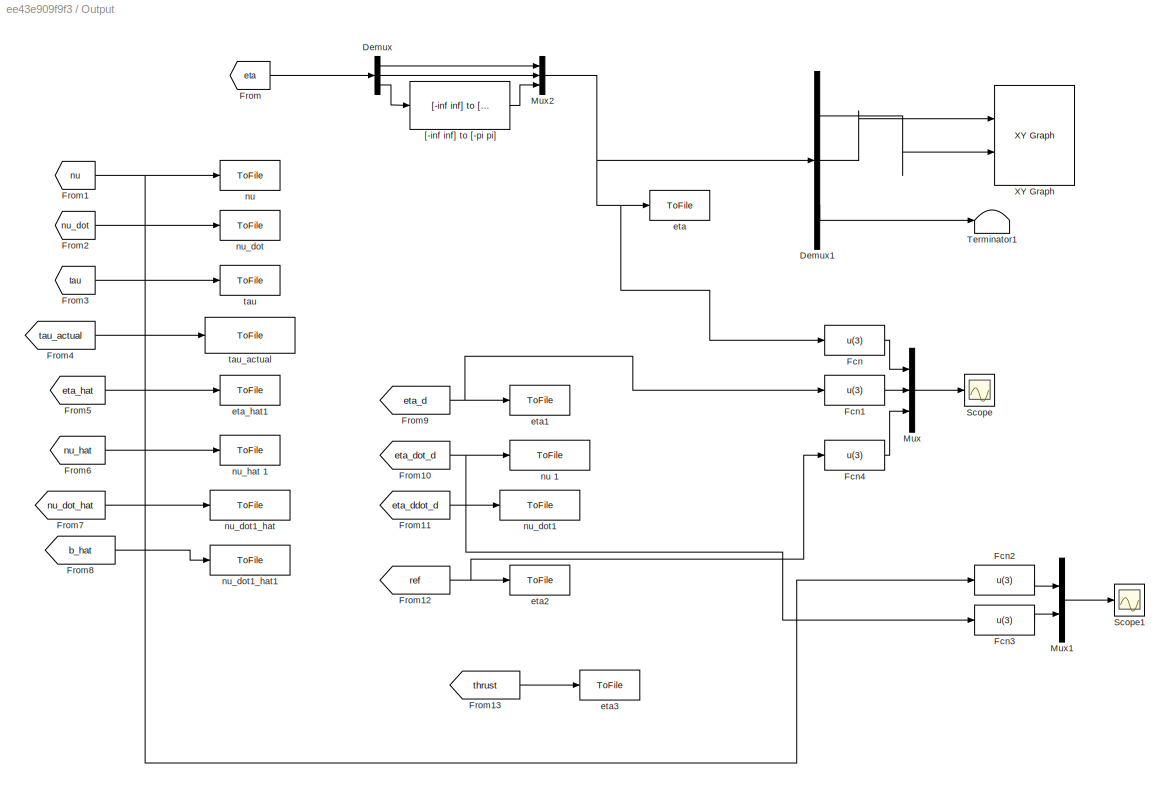
BLOCK [SubSystem] Output
  Ports = []
  RequestExecContextInheritance = off
BLOCK [Demux] Output/Demux
  DisplayOption = bar
  Outputs = 3
  Ports = [1, 3]
BLOCK [Demux] Output/Demux1
  DisplayOption = bar
  Outputs = 3
  Ports = [1, 3]
BLOCK [Fcn] Output/Fcn
  Expr = u(3)
BLOCK [Fcn] Output/Fcn1
  Expr = u(3)
BLOCK [Fcn] Output/Fcn2
  Expr = u(3)
BLOCK [Fcn] Output/Fcn3
  Expr = u(3)
BLOCK [Fcn] Output/Fcn4
  Expr = u(3)
BLOCK [From] Output/From
  GotoTag = eta
  TagVisibility = global
BLOCK [From] Output/From1
  GotoTag = nu
  TagVisibility = global
BLOCK [From] Output/From10
  GotoTag = eta_dot_d
  TagVisibility = global
BLOCK [From] Output/From11
  GotoTag = eta_ddot_d
  TagVisibility = global
BLOCK [From] Output/From12
  GotoTag = ref
  TagVisibility = global
BLOCK [From] Output/From13
  GotoTag = thrust
  TagVisibility = global
BLOCK [From] Output/From2
  GotoTag = nu_dot
  TagVisibility = global
BLOCK [From] Output/From3
  GotoTag = tau
  TagVisibility = global
BLOCK [From] Output/From4
  GotoTag = tau_actual
  TagVisibility = global
BLOCK [From] Output/From5
  GotoTag = eta_hat
  TagVisibility = global
BLOCK [From] Output/From6
  GotoTag = nu_hat
  TagVisibility = global
BLOCK [From] Output/From7
  GotoTag = nu_dot_hat
  TagVisibility = global
BLOCK [From] Output/From8
  GotoTag = b_hat
  TagVisibility = global
BLOCK [From] Output/From9
  GotoTag = eta_d
  TagVisibility = global
BLOCK [Mux] Output/Mux
  DisplayOption = bar
  Inputs = 3
  Ports = [3, 1]
BLOCK [Mux] Output/Mux1
  DisplayOption = bar
  Inputs = 2
  Ports = [2, 1]
BLOCK [Mux] Output/Mux2
  DisplayOption = bar
  Inputs = 3
  Ports = [3, 1]
BLOCK [Scope] Output/Scope
  Floating = off
  LimitDataPoints = off
  NumInputPorts = 1
  Ports = [1]
  ShowLegends = off
  YMax = 3.5
  YMin = -3.5
BLOCK [Scope] Output/Scope1
  Floating = off
  LimitDataPoints = off
  NumInputPorts = 1
  Ports = [1]
  SaveName = ScopeData1
  ShowLegends = off
  YMax = 0.9
  YMin = -0.1
BLOCK [Terminator] Output/Terminator1
BLOCK [Reference] Output/XY Graph  REF=simulink/Sinks/XY Graph
  Ports = [2]
  SourceBlock = simulink/Sinks/XY Graph
  SourceType = XY scope.
  st = -1
  xmax = 10
  xmin = -10
  ymax = 10
  ymin = -10
BLOCK [Reference] Output/[-inf inf] to [-pi pi]  REF=marine_gnc/Utilities/Math Operations/[-inf inf] to [-pi pi]  (lib defined in mdl_10d96c221ba8, mdl_45f1105420c6)
  Ports = [1, 1]
  SourceBlock = marine_gnc/Utilities/Math Operations/[-inf inf] to [-pi pi]
  SourceType = [-inf inf] to [-pi pi]
BLOCK [ToFile] Output/eta
  Filename = eta.mat
  MatrixName = eta
  Ports = [1]
BLOCK [ToFile] Output/eta1
  Filename = eta_d.mat
  MatrixName = eta_d
  Ports = [1]
BLOCK [ToFile] Output/eta2
  Filename = ref.mat
  MatrixName = ref
  Ports = [1]
BLOCK [ToFile] Output/eta3
  Filename = thrust.mat
  MatrixName = thrust
  Ports = [1]
BLOCK [ToFile] Output/eta_hat1
  Filename = eta_hat.mat
  MatrixName = eta_hat
  Ports = [1]
BLOCK [ToFile] Output/nu 
  Filename = nu.mat
  MatrixName = nu
  Ports = [1]
BLOCK [ToFile] Output/nu 1
  Filename = eta_dot_d.mat
  MatrixName = eta_dot_d
  Ports = [1]
BLOCK [ToFile] Output/nu_dot
  Filename = nu_dot.mat
  MatrixName = nu_dot
  Ports = [1]
BLOCK [ToFile] Output/nu_dot1
  Filename = eta_ddot_d.mat
  MatrixName = eta_ddot_d
  Ports = [1]
BLOCK [ToFile] Output/nu_dot1_hat
  Filename = nu_dot_hat.mat
  MatrixName = nu_dot_hat
  Ports = [1]
BLOCK [ToFile] Output/nu_dot1_hat1
  Filename = b_hat.mat
  MatrixName = b_hat
  Ports = [1]
BLOCK [ToFile] Output/nu_hat 1
  Filename = nu_hat.mat
  MatrixName = nu_hat
  Ports = [1]
BLOCK [ToFile] Output/tau
  Filename = tau.mat
  MatrixName = tau
  Ports = [1]
BLOCK [ToFile] Output/tau_actual
  Filename = tau_actual.mat
  MatrixName = tau_actual
  Ports = [1]
BLOCK [SubSystem] Plant
  Ports = [3, 3]
  RequestExecContextInheritance = off
BLOCK [SubSystem] Plant/CSE1 nonlinear with thruster dynamics
  Ports = [3, 4]
  RequestExecContextInheritance = off
BLOCK [From] Plant/CSE1 nonlinear with thruster dynamics/From1
  GotoTag = eta_0
  TagVisibility = global
BLOCK [From] Plant/CSE1 nonlinear with thruster dynamics/From2
  GotoTag = reset
  TagVisibility = global
BLOCK [Integrator] Plant/CSE1 nonlinear with thruster dynamics/Integrator
  ExternalReset = rising
  InitialCondition = [0 0 0]'
  Ports = [2, 1]
BLOCK [Integrator] Plant/CSE1 nonlinear with thruster dynamics/Integrator1
  ExternalReset = rising
  InitialCondition = [0 0 0]'
  InitialConditionSource = external
  Ports = [3, 1]
BLOCK [Mux] Plant/CSE1 nonlinear with thruster dynamics/Mux2
  DisplayOption = bar
  Inputs = 3
  Ports = [3, 1]
BLOCK [SubSystem] Plant/CSE1 nonlinear with thruster dynamics/Thruster configuration matrix
  ErrorFcn = Stateflow.Translate.translate
  PermitHierarchicalResolution = ExplicitOnly
  Ports = [3, 3]
  RequestExecContextInheritance = off
  SFBlockType = MATLAB Function
  TreatAsAtomicUnit = on
BLOCK [Demux] Plant/CSE1 nonlinear with thruster dynamics/Thruster configuration matrix/ Demux 
  Outputs = 1
  Ports = [1, 1]
BLOCK [S-Function] Plant/CSE1 nonlinear with thruster dynamics/Thruster configuration matrix/ SFunction 
  EnableBusSupport = on
  FunctionName = sf_sfun
  PortCounts = [3 4]
  Ports = [3, 4]
  Tag = Stateflow S-Function CSE1_DP 5
BLOCK [Terminator] Plant/CSE1 nonlinear with thruster dynamics/Thruster configuration matrix/ Terminator 
BLOCK [Inport] Plant/CSE1 nonlinear with thruster dynamics/Thruster configuration matrix/F_x_VSP
  IconDisplay = Port number
  Port = 2
BLOCK [Inport] Plant/CSE1 nonlinear with thruster dynamics/Thruster configuration matrix/F_y_BT
  IconDisplay = Port number
BLOCK [Inport] Plant/CSE1 nonlinear with thruster dynamics/Thruster configuration matrix/F_y_VSP
  IconDisplay = Port number
  Port = 3
BLOCK [Outport] Plant/CSE1 nonlinear with thruster dynamics/Thruster configuration matrix/tau_r
  IconDisplay = Port number
  Port = 3
BLOCK [Outport] Plant/CSE1 nonlinear with thruster dynamics/Thruster configuration matrix/tau_u
  IconDisplay = Port number
BLOCK [Outport] Plant/CSE1 nonlinear with thruster dynamics/Thruster configuration matrix/tau_v
  IconDisplay = Port number
  Port = 2
BLOCK [SubSystem] Plant/CSE1 nonlinear with thruster dynamics/Thruster mapping
  Ports = [4, 3]
  RequestExecContextInheritance = off
BLOCK [SubSystem] Plant/CSE1 nonlinear with thruster dynamics/Thruster mapping/Bow thruster
  ErrorFcn = Stateflow.Translate.translate
  PermitHierarchicalResolution = ExplicitOnly
  Ports = [2, 1]
  RequestExecContextInheritance = off
  SFBlockType = MATLAB Function
  TreatAsAtomicUnit = on
BLOCK [Demux] Plant/CSE1 nonlinear with thruster dynamics/Thruster mapping/Bow thruster/ Demux 
  Outputs = 1
  Ports = [1, 1]
BLOCK [S-Function] Plant/CSE1 nonlinear with thruster dynamics/Thruster mapping/Bow thruster/ SFunction 
  EnableBusSupport = on
  FunctionName = sf_sfun
  PortCounts = [2 2]
  Ports = [2, 2]
  Tag = Stateflow S-Function CSE1_DP 6
BLOCK [Terminator] Plant/CSE1 nonlinear with thruster dynamics/Thruster mapping/Bow thruster/ Terminator 
BLOCK [Outport] Plant/CSE1 nonlinear with thruster dynamics/Thruster mapping/Bow thruster/F_y
  IconDisplay = Port number
BLOCK [Inport] Plant/CSE1 nonlinear with thruster dynamics/Thruster mapping/Bow thruster/nu
  IconDisplay = Port number
  Port = 2
BLOCK [Inport] Plant/CSE1 nonlinear with thruster dynamics/Thruster mapping/Bow thruster/u_BT
  IconDisplay = Port number
BLOCK [Outport] Plant/CSE1 nonlinear with thruster dynamics/Thruster mapping/F_x_VSP
  IconDisplay = Port number
  Port = 2
BLOCK [Outport] Plant/CSE1 nonlinear with thruster dynamics/Thruster mapping/F_y_BT
  IconDisplay = Port number
BLOCK [Outport] Plant/CSE1 nonlinear with thruster dynamics/Thruster mapping/F_y_VSP
  IconDisplay = Port number
  Port = 3
BLOCK [SubSystem] Plant/CSE1 nonlinear with thruster dynamics/Thruster mapping/VSP
  ErrorFcn = Stateflow.Translate.translate
  PermitHierarchicalResolution = ExplicitOnly
  Ports = [2, 2]
  RequestExecContextInheritance = off
  SFBlockType = MATLAB Function
  TreatAsAtomicUnit = on
BLOCK [Demux] Plant/CSE1 nonlinear with thruster dynamics/Thruster mapping/VSP/ Demux 
  Outputs = 1
  Ports = [1, 1]
BLOCK [S-Function] Plant/CSE1 nonlinear with thruster dynamics/Thruster mapping/VSP/ SFunction 
  EnableBusSupport = on
  FunctionName = sf_sfun
  PortCounts = [2 3]
  Ports = [2, 3]
  Tag = Stateflow S-Function CSE1_DP 7
BLOCK [Terminator] Plant/CSE1 nonlinear with thruster dynamics/Thruster mapping/VSP/ Terminator 
BLOCK [Outport] Plant/CSE1 nonlinear with thruster dynamics/Thruster mapping/VSP/F_x
  IconDisplay = Port number
BLOCK [Outport] Plant/CSE1 nonlinear with thruster dynamics/Thruster mapping/VSP/F_y
  IconDisplay = Port number
  Port = 2
BLOCK [Inport] Plant/CSE1 nonlinear with thruster dynamics/Thruster mapping/VSP/alpha
  IconDisplay = Port number
BLOCK [Inport] Plant/CSE1 nonlinear with thruster dynamics/Thruster mapping/VSP/u_VST
  IconDisplay = Port number
  Port = 2
BLOCK [Inport] Plant/CSE1 nonlinear with thruster dynamics/Thruster mapping/alpha
  IconDisplay = Port number
  Port = 3
BLOCK [Inport] Plant/CSE1 nonlinear with thruster dynamics/Thruster mapping/nu
  IconDisplay = Port number
  Port = 4
BLOCK [Inport] Plant/CSE1 nonlinear with thruster dynamics/Thruster mapping/u_BT
  IconDisplay = Port number
BLOCK [Inport] Plant/CSE1 nonlinear with thruster dynamics/Thruster mapping/u_VSP
  IconDisplay = Port number
  Port = 2
BLOCK [Inport] Plant/CSE1 nonlinear with thruster dynamics/alpha
  IconDisplay = Port number
  Port = 3
BLOCK [Outport] Plant/CSE1 nonlinear with thruster dynamics/eta
  IconDisplay = Port number
  Port = 2
BLOCK [SubSystem] Plant/CSE1 nonlinear with thruster dynamics/kinematics
  ErrorFcn = Stateflow.Translate.translate
  PermitHierarchicalResolution = ExplicitOnly
  Ports = [2, 1]
  RequestExecContextInheritance = off
  SFBlockType = MATLAB Function
  TreatAsAtomicUnit = on
BLOCK [Demux] Plant/CSE1 nonlinear with thruster dynamics/kinematics/ Demux 
  Outputs = 1
  Ports = [1, 1]
BLOCK [S-Function] Plant/CSE1 nonlinear with thruster dynamics/kinematics/ SFunction 
  EnableBusSupport = on
  FunctionName = sf_sfun
  PortCounts = [2 2]
  Ports = [2, 2]
  Tag = Stateflow S-Function CSE1_DP 8
BLOCK [Terminator] Plant/CSE1 nonlinear with thruster dynamics/kinematics/ Terminator 
BLOCK [Inport] Plant/CSE1 nonlinear with thruster dynamics/kinematics/eta
  IconDisplay = Port number
  Port = 2
BLOCK [Outport] Plant/CSE1 nonlinear with thruster dynamics/kinematics/eta_dot
  IconDisplay = Port number
BLOCK [Inport] Plant/CSE1 nonlinear with thruster dynamics/kinematics/nu
  IconDisplay = Port number
BLOCK [SubSystem] Plant/CSE1 nonlinear with thruster dynamics/kinetics
  ErrorFcn = Stateflow.Translate.translate
  PermitHierarchicalResolution = ExplicitOnly
  Ports = [4, 1]
  RequestExecContextInheritance = off
  SFBlockType = MATLAB Function
  TreatAsAtomicUnit = on
BLOCK [Demux] Plant/CSE1 nonlinear with thruster dynamics/kinetics/ Demux 
  Outputs = 1
  Ports = [1, 1]
BLOCK [S-Function] Plant/CSE1 nonlinear with thruster dynamics/kinetics/ SFunction 
  EnableBusSupport = on
  FunctionName = sf_sfun
  PortCounts = [4 2]
  Ports = [4, 2]
  Tag = Stateflow S-Function CSE1_DP 10
BLOCK [Terminator] Plant/CSE1 nonlinear with thruster dynamics/kinetics/ Terminator 
BLOCK [Inport] Plant/CSE1 nonlinear with thruster dynamics/kinetics/nu
  IconDisplay = Port number
  Port = 4
BLOCK [Outport] Plant/CSE1 nonlinear with thruster dynamics/kinetics/nu_dot
  IconDisplay = Port number
BLOCK [Inport] Plant/CSE1 nonlinear with thruster dynamics/kinetics/tau_r
  IconDisplay = Port number
  Port = 3
BLOCK [Inport] Plant/CSE1 nonlinear with thruster dynamics/kinetics/tau_u
  IconDisplay = Port number
BLOCK [Inport] Plant/CSE1 nonlinear with thruster dynamics/kinetics/tau_v
  IconDisplay = Port number
  Port = 2
BLOCK [Outport] Plant/CSE1 nonlinear with thruster dynamics/nu
  IconDisplay = Port number
  Port = 3
BLOCK [Outport] Plant/CSE1 nonlinear with thruster dynamics/nu_dot
  IconDisplay = Port number
  Port = 4
BLOCK [Outport] Plant/CSE1 nonlinear with thruster dynamics/tau_actual
  IconDisplay = Port number
BLOCK [Inport] Plant/CSE1 nonlinear with thruster dynamics/u_VSP
  IconDisplay = Port number
  Port = 2
BLOCK [Inport] Plant/CSE1 nonlinear with thruster dynamics/u_bt
  IconDisplay = Port number
BLOCK [Goto] Plant/Goto
  GotoTag = tau_actual
  TagVisibility = global
BLOCK [Goto] Plant/Goto1
  GotoTag = eta
  TagVisibility = global
BLOCK [Goto] Plant/Goto2
  GotoTag = nu
  TagVisibility = global
BLOCK [Goto] Plant/Goto3
  GotoTag = nu_dot
  TagVisibility = global
BLOCK [Terminator] Plant/Terminator
BLOCK [Inport] Plant/alpha_VSP
  IconDisplay = Port number
  Port = 3
BLOCK [Outport] Plant/eta
  IconDisplay = Port number
BLOCK [Outport] Plant/nu
  IconDisplay = Port number
  Port = 2
BLOCK [Outport] Plant/nu_dot
  IconDisplay = Port number
  Port = 3
BLOCK [Inport] Plant/u_BT
  IconDisplay = Port number
BLOCK [Inport] Plant/u_VSP
  IconDisplay = Port number
  Port = 2
BLOCK [Terminator] Terminator1
BLOCK [Terminator] Terminator2
BLOCK [Terminator] Terminator3
BLOCK [Terminator] Terminator4
BLOCK [Terminator] Terminator5
BLOCK [SubSystem] Thrust allocation
  Ports = [1, 4]
  RequestExecContextInheritance = off
BLOCK [Goto] Thrust allocation/Goto4
  GotoTag = thrust
  TagVisibility = global
BLOCK [Outport] Thrust allocation/alpha_VSP
  IconDisplay = Port number
  Port = 3
BLOCK [SubSystem] Thrust allocation/linear thrust allocation
  Ports = [1, 5]
  RequestExecContextInheritance = off
BLOCK [Demux] Thrust allocation/linear thrust allocation/Demux
  DisplayOption = bar
  Outputs = 3
  Ports = [1, 3]
BLOCK [From] Thrust allocation/linear thrust allocation/From3
  GotoTag = VSP_on
  TagVisibility = global
BLOCK [Mux] Thrust allocation/linear thrust allocation/Mux1
  DisplayOption = bar
  Inputs = 3
  Ports = [3, 1]
BLOCK [SubSystem] Thrust allocation/linear thrust allocation/Thrust allocation
  ErrorFcn = Stateflow.Translate.translate
  PermitHierarchicalResolution = ExplicitOnly
  Ports = [4, 4]
  RequestExecContextInheritance = off
  SFBlockType = MATLAB Function
  TreatAsAtomicUnit = on
BLOCK [Demux] Thrust allocation/linear thrust allocation/Thrust allocation/ Demux 
  Outputs = 1
  Ports = [1, 1]
BLOCK [S-Function] Thrust allocation/linear thrust allocation/Thrust allocation/ SFunction 
  EnableBusSupport = on
  FunctionName = sf_sfun
  PortCounts = [4 5]
  Ports = [4, 5]
  Tag = Stateflow S-Function CSE1_DP 9
BLOCK [Terminator] Thrust allocation/linear thrust allocation/Thrust allocation/ Terminator 
BLOCK [Inport] Thrust allocation/linear thrust allocation/Thrust allocation/N
  IconDisplay = Port number
  Port = 3
BLOCK [Inport] Thrust allocation/linear thrust allocation/Thrust allocation/VSP_on
  IconDisplay = Port number
  Port = 4
BLOCK [Inport] Thrust allocation/linear thrust allocation/Thrust allocation/X
  IconDisplay = Port number
BLOCK [Inport] Thrust allocation/linear thrust allocation/Thrust allocation/Y
  IconDisplay = Port number
  Port = 2
BLOCK [Outport] Thrust allocation/linear thrust allocation/Thrust allocation/alpha_VSP
  IconDisplay = Port number
  Port = 3
BLOCK [Outport] Thrust allocation/linear thrust allocation/Thrust allocation/omega_VSP
  IconDisplay = Port number
  Port = 4
BLOCK [Outport] Thrust allocation/linear thrust allocation/Thrust allocation/u_BT
  IconDisplay = Port number
BLOCK [Outport] Thrust allocation/linear thrust allocation/Thrust allocation/u_VSP
  IconDisplay = Port number
  Port = 2
BLOCK [Outport] Thrust allocation/linear thrust allocation/alpha_VSP
  IconDisplay = Port number
  Port = 3
BLOCK [Outport] Thrust allocation/linear thrust allocation/omega_VSP
  IconDisplay = Port number
  Port = 4
BLOCK [Inport] Thrust allocation/linear thrust allocation/tau
  IconDisplay = Port number
BLOCK [Outport] Thrust allocation/linear thrust allocation/thrust
  IconDisplay = Port number
  Port = 5
BLOCK [Outport] Thrust allocation/linear thrust allocation/u_BT
  IconDisplay = Port number
BLOCK [Outport] Thrust allocation/linear thrust allocation/u_VSP
  IconDisplay = Port number
  Port = 2
BLOCK [Outport] Thrust allocation/omega_VSP
  IconDisplay = Port number
  Port = 4
BLOCK [Inport] Thrust allocation/tau
  IconDisplay = Port number
BLOCK [Outport] Thrust allocation/u_BT
  IconDisplay = Port number
BLOCK [Outport] Thrust allocation/u_VSP
  IconDisplay = Port number
  Port = 2
ANNOTATION Control/Backstepping: eta_tilde
LINE Control/Adaptive law/Abs:1 -> Control/Adaptive law/Product2:1
LINE Control/Adaptive law/Demux:1 -> Control/Adaptive law/Goto:1
LINE Control/Adaptive law/Demux:2 -> Control/Adaptive law/Goto1:1
LINE Control/Adaptive law/From:1 -> Control/Adaptive law/Matrix Multiply:1
NET Control/Adaptive law/Integrator:1 -> Control/Adaptive law/Demux:1, Control/Adaptive law/theta:1
LINE Control/Adaptive law/Matrix Multiply:1 -> Control/Adaptive law/Integrator:1
LINE Control/Adaptive law/Mux2:1 -> Control/Adaptive law/Product:1
LINE Control/Adaptive law/Product2:1 -> Control/Adaptive law/Mux2:2
LINE Control/Adaptive law/Product:1 -> Control/Adaptive law/Matrix Multiply:2
LINE Control/Adaptive law/Sum:1 -> Control/Adaptive law/Product:2
LINE Control/Adaptive law/a_psi:1 -> Control/Adaptive law/Mux2:1
NET Control/Adaptive law/r:1 -> Control/Adaptive law/Abs:1, Control/Adaptive law/Product2:2, Control/Adaptive law/Sum:1
LINE Control/Adaptive law/r_d:1 -> Control/Adaptive law/Sum:2
LINE Control/Adaptive law:1 -> Control/MRAC:7
LINE Control/Backstepping/C(nu)*nu:1 -> Control/Backstepping/Sum:2
LINE Control/Backstepping/D(nu)*nu:1 -> Control/Backstepping/Sum:3
LINE Control/Backstepping/Derivative:1 -> Control/Backstepping/M^-1:1
NET Control/Backstepping/Fcn:1 -> Control/Backstepping/Rotation matrix in yaw 1:1, Control/Backstepping/Transpose Rotation matrix1:1, Control/Backstepping/Transpose Rotation matrix:1
LINE Control/Backstepping/From1:1 -> Control/Backstepping/Matrix Multiply:1
LINE Control/Backstepping/From:1 -> Control/Backstepping/Matrix Multiply1:1
LINE Control/Backstepping/L:1 -> Control/Backstepping/Sum4:1
LINE Control/Backstepping/M^-1:1 -> Control/Backstepping/Sum:1
LINE Control/Backstepping/Matrix Multiply1:1 -> Control/Backstepping/Sum2:1
LINE Control/Backstepping/Matrix Multiply:1 -> Control/Backstepping/Sum3:1
LINE Control/Backstepping/Rotation matrix in yaw 1:1 -> Control/Backstepping/Sum5:2
NET Control/Backstepping/Sum1:1 -> Control/Backstepping/L:1, Control/Backstepping/Transpose Rotation matrix:2
LINE Control/Backstepping/Sum2:1 -> Control/Backstepping/tau:1
LINE Control/Backstepping/Sum3:1 -> Control/Backstepping/Sum2:2
NET Control/Backstepping/Sum4:1 -> Control/Backstepping/C(nu)*nu:1, Control/Backstepping/D(nu)*nu:1, Control/Backstepping/Derivative:1, Control/Backstepping/Sum5:1
LINE Control/Backstepping/Sum5:1 -> Control/Backstepping/Transpose Rotation matrix1:2
LINE Control/Backstepping/Sum:1 -> Control/Backstepping/Sum3:2
LINE Control/Backstepping/Transpose Rotation matrix/Mux1:1 -> Control/Backstepping/Transpose Rotation matrix/R(psi)'*eta:1
NET Control/Backstepping/Transpose Rotation matrix/Mux:1 -> Control/Backstepping/Transpose Rotation matrix/Row1:1, Control/Backstepping/Transpose Rotation matrix/Row2:1, Control/Backstepping/Transpose Rotation matrix/Row3:1
LINE Control/Backstepping/Transpose Rotation matrix/Row1:1 -> Control/Backstepping/Transpose Rotation matrix/Mux1:1
LINE Control/Backstepping/Transpose Rotation matrix/Row2:1 -> Control/Backstepping/Transpose Rotation matrix/Mux1:2
LINE Control/Backstepping/Transpose Rotation matrix/Row3:1 -> Control/Backstepping/Transpose Rotation matrix/Mux1:3
LINE Control/Backstepping/Transpose Rotation matrix/eta:1 -> Control/Backstepping/Transpose Rotation matrix/Mux:2
LINE Control/Backstepping/Transpose Rotation matrix/psi:1 -> Control/Backstepping/Transpose Rotation matrix/Mux:1
LINE Control/Backstepping/Transpose Rotation matrix1/Mux1:1 -> Control/Backstepping/Transpose Rotation matrix1/R(psi)'*eta:1
NET Control/Backstepping/Transpose Rotation matrix1/Mux:1 -> Control/Backstepping/Transpose Rotation matrix1/Row1:1, Control/Backstepping/Transpose Rotation matrix1/Row2:1, Control/Backstepping/Transpose Rotation matrix1/Row3:1
LINE Control/Backstepping/Transpose Rotation matrix1/Row1:1 -> Control/Backstepping/Transpose Rotation matrix1/Mux1:1
LINE Control/Backstepping/Transpose Rotation matrix1/Row2:1 -> Control/Backstepping/Transpose Rotation matrix1/Mux1:2
LINE Control/Backstepping/Transpose Rotation matrix1/Row3:1 -> Control/Backstepping/Transpose Rotation matrix1/Mux1:3
LINE Control/Backstepping/Transpose Rotation matrix1/eta:1 -> Control/Backstepping/Transpose Rotation matrix1/Mux:2
LINE Control/Backstepping/Transpose Rotation matrix1/psi:1 -> Control/Backstepping/Transpose Rotation matrix1/Mux:1
LINE Control/Backstepping/Transpose Rotation matrix1:1 -> Control/Backstepping/Matrix Multiply:2
LINE Control/Backstepping/Transpose Rotation matrix:1 -> Control/Backstepping/Matrix Multiply1:2
NET Control/Backstepping/eta:1 -> Control/Backstepping/Fcn:1, Control/Backstepping/Sum1:1
LINE Control/Backstepping/eta_d:1 -> Control/Backstepping/Sum1:2
LINE Control/Backstepping/nu:1 -> Control/Backstepping/Rotation matrix in yaw 1:2
LINE Control/Backstepping/nu_d:1 -> Control/Backstepping/Sum4:2
LINE Control/DP Controller/Demux:1 -> Control/DP Controller/Mux:1
LINE Control/DP Controller/Demux:2 -> Control/DP Controller/Mux:2
LINE Control/DP Controller/Demux:3 -> Control/DP Controller/[-inf inf] to [-pi pi]:1
LINE Control/DP Controller/From1:1 -> Control/DP Controller/Matrix Multiply1:1
LINE Control/DP Controller/From2:1 -> Control/DP Controller/Matrix Multiply2:1
LINE Control/DP Controller/From3:1 -> Control/DP Controller/Integrator:2
LINE Control/DP Controller/From4:1 -> Control/DP Controller/Matrix Multiply3:1
LINE Control/DP Controller/From5:1 -> Control/DP Controller/Matrix Multiply4:1
LINE Control/DP Controller/From:1 -> Control/DP Controller/Matrix Multiply:1
LINE Control/DP Controller/Integrator:1 -> Control/DP Controller/Matrix Multiply1:2
LINE Control/DP Controller/Matrix Multiply1:1 -> Control/DP Controller/Sum3:2
LINE Control/DP Controller/Matrix Multiply2:1 -> Control/DP Controller/Sum3:3
LINE Control/DP Controller/Matrix Multiply3:1 -> Control/DP Controller/Sum5:1
LINE Control/DP Controller/Matrix Multiply4:1 -> Control/DP Controller/Sum5:2
LINE Control/DP Controller/Matrix Multiply:1 -> Control/DP Controller/Sum3:1
LINE Control/DP Controller/Mux:1 -> Control/DP Controller/Transposed rotation matrix in yaw1:2
LINE Control/DP Controller/Sum1:1 -> Control/DP Controller/tau:1
LINE Control/DP Controller/Sum2:1 -> Control/DP Controller/Demux:1
LINE Control/DP Controller/Sum3:1 -> Control/DP Controller/Sum1:1
LINE Control/DP Controller/Sum4:1 -> Control/DP Controller/Matrix Multiply2:2
LINE Control/DP Controller/Sum5:1 -> Control/DP Controller/Sum1:2
NET Control/DP Controller/Transposed rotation matrix in yaw1:1 -> Control/DP Controller/Integrator:1, Control/DP Controller/Matrix Multiply:2
NET Control/DP Controller/Transposed rotation matrix in yaw2:1 -> Control/DP Controller/Matrix Multiply3:2, Control/DP Controller/Sum4:2
LINE Control/DP Controller/Transposed rotation matrix in yaw3:1 -> Control/DP Controller/Matrix Multiply4:2
LINE Control/DP Controller/[-inf inf] to [-pi pi]1:1 -> Control/DP Controller/Transposed rotation matrix in yaw1:1
LINE Control/DP Controller/[-inf inf] to [-pi pi]:1 -> Control/DP Controller/Mux:3
NET Control/DP Controller/eta:1 -> Control/DP Controller/Sum2:1, Control/DP Controller/yaw angle:1
NET Control/DP Controller/eta_d:1 -> Control/DP Controller/Sum2:2, Control/DP Controller/yaw angle1:1
LINE Control/DP Controller/eta_ddot:1 -> Control/DP Controller/Transposed rotation matrix in yaw3:2
LINE Control/DP Controller/eta_dot_d:1 -> Control/DP Controller/Transposed rotation matrix in yaw2:2
LINE Control/DP Controller/nu:1 -> Control/DP Controller/Sum4:1
NET Control/DP Controller/yaw angle1:1 -> Control/DP Controller/Transposed rotation matrix in yaw2:1, Control/DP Controller/Transposed rotation matrix in yaw3:1
LINE Control/DP Controller/yaw angle:1 -> Control/DP Controller/[-inf inf] to [-pi pi]1:1
NET Control/DP Controller:1 -> Control/Goto:1, Control/tau:1
LINE Control/MRAC/Abs:1 -> Control/MRAC/Product2:1
LINE Control/MRAC/Demux:1 -> Control/MRAC/Product:2
LINE Control/MRAC/Demux:2 -> Control/MRAC/Product1:2
LINE Control/MRAC/From1:1 -> Control/MRAC/Product3:1
LINE Control/MRAC/From2:1 -> Control/MRAC/Product4:2
LINE Control/MRAC/From:1 -> Control/MRAC/Product5:2
LINE Control/MRAC/Integrator:1 -> Control/MRAC/Sum3:2
LINE Control/MRAC/Product1:1 -> Control/MRAC/Sum4:2
LINE Control/MRAC/Product2:1 -> Control/MRAC/Product1:1
LINE Control/MRAC/Product3:1 -> Control/MRAC/Sum3:1
LINE Control/MRAC/Product4:1 -> Control/MRAC/Integrator:1
LINE Control/MRAC/Product5:1 -> Control/MRAC/Sum3:3
LINE Control/MRAC/Product:1 -> Control/MRAC/Sum4:1
NET Control/MRAC/Sum1:1 -> Control/MRAC/Product3:2, Control/MRAC/Product4:1
LINE Control/MRAC/Sum2:1 -> Control/MRAC/Product5:1
LINE Control/MRAC/Sum3:1 -> Control/MRAC/Sum:1
NET Control/MRAC/Sum4:1 -> Control/MRAC/Goto2:1, Control/MRAC/N:1
NET Control/MRAC/Sum:1 -> Control/MRAC/Product:1, Control/MRAC/a_psi:1
LINE Control/MRAC/psi:1 -> Control/MRAC/Sum1:1
LINE Control/MRAC/psi_d:1 -> Control/MRAC/Sum1:2
NET Control/MRAC/r:1 -> Control/MRAC/Abs:1, Control/MRAC/Product2:2, Control/MRAC/Sum2:1
LINE Control/MRAC/r_d:1 -> Control/MRAC/Sum2:2
LINE Control/MRAC/r_dot_d:1 -> Control/MRAC/Sum:2
LINE Control/MRAC/reset:1 -> Control/MRAC/Integrator:2
LINE Control/MRAC/theta:1 -> Control/MRAC/Demux:1
LINE Control/eta:1 -> Control/DP Controller:2
LINE Control/eta_d:1 -> Control/DP Controller:1
LINE Control/eta_ddot_d:1 -> Control/DP Controller:5
LINE Control/eta_dot_d:1 -> Control/DP Controller:4
LINE Control/nu_hat:1 -> Control/DP Controller:3
NET Control:1 -> Navigation :2, Thrust allocation:1
LINE Guidance/Reference :1 -> Guidance/Reference model:1
NET Guidance/Reference model/       :1 -> Guidance/Reference model/Integrator1:1, Guidance/Reference model/Matrix Multiply5:2, Guidance/Reference model/eta_dot_d:1
NET Guidance/Reference model/From1:1 -> Guidance/Reference model/Integrator1:2, Guidance/Reference model/Integrator2:2, Guidance/Reference model/Integrator3:2
LINE Guidance/Reference model/From2:1 -> Guidance/Reference model/w_d^3:1
LINE Guidance/Reference model/From3:1 -> Guidance/Reference model/w_d^-2:1
LINE Guidance/Reference model/From4:1 -> Guidance/Reference model/w_d*w_d:1
LINE Guidance/Reference model/From5:1 -> Guidance/Reference model/w_d*w_d1:1
LINE Guidance/Reference model/From6:1 -> Guidance/Reference model/w_d*w_d1:2
LINE Guidance/Reference model/From:1 -> Guidance/Reference model/Integrator1:3
NET Guidance/Reference model/Integrator1:1 -> Guidance/Reference model/Matrix Multiply2:2, Guidance/Reference model/eta_d:1
NET Guidance/Reference model/Integrator2:1 -> Guidance/Reference model/Matrix Multiply1:2, Guidance/Reference model/Sum2:1
LINE Guidance/Reference model/Integrator3:1 -> Guidance/Reference model/       :1
LINE Guidance/Reference model/Matrix Multiply1:1 -> Guidance/Reference model/Sum:2
LINE Guidance/Reference model/Matrix Multiply2:1 -> Guidance/Reference model/Sum2:2
LINE Guidance/Reference model/Matrix Multiply5:1 -> Guidance/Reference model/Sum5:2
LINE Guidance/Reference model/Matrix Multiply:1 -> Guidance/Reference model/Integrator2:1
LINE Guidance/Reference model/Sum2:1 -> Guidance/Reference model/Sum5:1
NET Guidance/Reference model/Sum5:1 -> Guidance/Reference model/Integrator3:1, Guidance/Reference model/eta_ddot_d:1
LINE Guidance/Reference model/Sum:1 -> Guidance/Reference model/Matrix Multiply:2
LINE Guidance/Reference model/reference:1 -> Guidance/Reference model/Sum:1
LINE Guidance/Reference model/w_d*w_d1:1 -> Guidance/Reference model/Matrix Multiply5:1
LINE Guidance/Reference model/w_d*w_d:1 -> Guidance/Reference model/Matrix Multiply2:1
LINE Guidance/Reference model/w_d^-2:1 -> Guidance/Reference model/Matrix Multiply1:1
LINE Guidance/Reference model/w_d^3:1 -> Guidance/Reference model/Matrix Multiply:1
NET Guidance/Reference model:1 -> Guidance/Goto:1, Guidance/eta_d:1
NET Guidance/Reference model:2 -> Guidance/Goto1:1, Guidance/eta_dot_d:1
NET Guidance/Reference model:3 -> Guidance/Goto2:1, Guidance/eta_ddot_d:1
LINE Guidance:1 -> Control:1
LINE Guidance:2 -> Control:2
LINE Guidance:3 -> Control:3
LINE Input/Control Gains/Constant10:1 -> Input/Control Gains/Mux3:3
LINE Input/Control Gains/Constant11:1 -> Input/Control Gains/Mux4:2
LINE Input/Control Gains/Constant12:1 -> Input/Control Gains/Mux4:3
LINE Input/Control Gains/Constant13:1 -> Input/Control Gains/Mux5:2
LINE Input/Control Gains/Constant14:1 -> Input/Control Gains/Mux5:3
LINE Input/Control Gains/Constant15:1 -> Input/Control Gains/Mux5:1
LINE Input/Control Gains/Constant1:1 -> Input/Control Gains/Mux1:1
LINE Input/Control Gains/Constant2:1 -> Input/Control Gains/Mux1:2
LINE Input/Control Gains/Constant3:1 -> Input/Control Gains/Mux1:3
LINE Input/Control Gains/Constant4:1 -> Input/Control Gains/Mux2:1
LINE Input/Control Gains/Constant5:1 -> Input/Control Gains/Mux2:2
LINE Input/Control Gains/Constant6:1 -> Input/Control Gains/Mux4:1
LINE Input/Control Gains/Constant7:1 -> Input/Control Gains/Mux2:3
LINE Input/Control Gains/Constant8:1 -> Input/Control Gains/Mux3:1
LINE Input/Control Gains/Constant9:1 -> Input/Control Gains/Mux3:2
LINE Input/Control Gains/MATLAB Function1:1 -> Input/Control Gains/Goto3:1
LINE Input/Control Gains/MATLAB Function2:1 -> Input/Control Gains/Goto4:1
LINE Input/Control Gains/MATLAB Function3:1 -> Input/Control Gains/Goto1:1
LINE Input/Control Gains/MATLAB Function4:1 -> Input/Control Gains/Goto5:1
LINE Input/Control Gains/MATLAB Function:1 -> Input/Control Gains/Goto2:1
LINE Input/Control Gains/Mux1:1 -> Input/Control Gains/MATLAB Function:1
LINE Input/Control Gains/Mux2:1 -> Input/Control Gains/MATLAB Function1:1
LINE Input/Control Gains/Mux3:1 -> Input/Control Gains/MATLAB Function2:1
LINE Input/Control Gains/Mux4:1 -> Input/Control Gains/MATLAB Function3:1
LINE Input/Control Gains/Mux5:1 -> Input/Control Gains/MATLAB Function4:1
LINE Input/Guidance gains/Constant11:1 -> Input/Guidance gains/Mux4:1
LINE Input/Guidance gains/Constant12:1 -> Input/Guidance gains/Mux4:2
LINE Input/Guidance gains/Constant13:1 -> Input/Guidance gains/Mux4:3
LINE Input/Guidance gains/Constant14:1 -> Input/Guidance gains/Mux5:1
LINE Input/Guidance gains/Constant15:1 -> Input/Guidance gains/Mux5:2
LINE Input/Guidance gains/Constant16:1 -> Input/Guidance gains/Mux5:3
LINE Input/Guidance gains/Mux4:1 -> Input/Guidance gains/diag:1
LINE Input/Guidance gains/Mux5:1 -> Input/Guidance gains/diag1:1
LINE Input/Guidance gains/diag1:1 -> Input/Guidance gains/Goto1:1
LINE Input/Guidance gains/diag:1 -> Input/Guidance gains/Goto:1
LINE Input/Manual Switch1:1 -> Input/Manual Switch:2
LINE Input/Manual Switch2:1 -> Input/Mux:3
LINE Input/Manual Switch:1 -> Input/Manual Switch2:2
LINE Input/Mux1:1 -> Input/Goto1:1
NET Input/Mux:1 -> Input/Goto:1, Input/reference:1
LINE Input/Observer Gains/Constant10:1 -> Input/Observer Gains/Mux3:3
LINE Input/Observer Gains/Constant1:1 -> Input/Observer Gains/Mux1:1
LINE Input/Observer Gains/Constant2:1 -> Input/Observer Gains/Mux1:2
LINE Input/Observer Gains/Constant3:1 -> Input/Observer Gains/Mux1:3
LINE Input/Observer Gains/Constant4:1 -> Input/Observer Gains/Mux2:1
LINE Input/Observer Gains/Constant5:1 -> Input/Observer Gains/Mux2:2
LINE Input/Observer Gains/Constant7:1 -> Input/Observer Gains/Mux2:3
LINE Input/Observer Gains/Constant8:1 -> Input/Observer Gains/Mux3:1
LINE Input/Observer Gains/Constant9:1 -> Input/Observer Gains/Mux3:2
LINE Input/Observer Gains/MATLAB Function1:1 -> Input/Observer Gains/Goto3:1
LINE Input/Observer Gains/MATLAB Function2:1 -> Input/Observer Gains/Goto4:1
LINE Input/Observer Gains/MATLAB Function:1 -> Input/Observer Gains/Goto2:1
LINE Input/Observer Gains/Mux1:1 -> Input/Observer Gains/MATLAB Function:1
LINE Input/Observer Gains/Mux2:1 -> Input/Observer Gains/MATLAB Function1:1
LINE Input/Observer Gains/Mux3:1 -> Input/Observer Gains/MATLAB Function2:1
LINE Input/Pulse Generator:1 -> Input/Manual Switch1:2
LINE Input/Sine Wave:1 -> Input/Manual Switch1:1
LINE Input/Step1:1 -> Input/Sum1:2
LINE Input/Step:1 -> Input/Sum:2
LINE Input/Sum1:1 -> Input/Mux:2
LINE Input/Sum:1 -> Input/Mux:1
LINE Input/VSP_0n:1 -> Input/Goto4:1
LINE Input/ref:1 -> Input/Manual Switch:1
LINE Input/reset1:1 -> Input/Sum:1
LINE Input/reset2:1 -> Input/Sum1:1
LINE Input/reset3:1 -> Input/Manual Switch2:1
LINE Input/reset4:1 -> Input/Mux1:1
LINE Input/reset5:1 -> Input/Mux1:2
LINE Input/reset6:1 -> Input/Mux1:3
LINE Input/reset:1 -> Input/Goto3:1
LINE Input:1 -> Guidance:1
LINE Navigation /Derivative filter/Constant2:1 -> Navigation /Derivative filter/MATLAB Function2:1
LINE Navigation /Derivative filter/Constant:1 -> Navigation /Derivative filter/MATLAB Function:1
LINE Navigation /Derivative filter/Fcn:1 -> Navigation /Derivative filter/MATLAB Function3:2
LINE Navigation /Derivative filter/MATLAB Function1:1 -> Navigation /Derivative filter/MATLAB Function2:2
NET Navigation /Derivative filter/MATLAB Function2:1 -> Navigation /Derivative filter/MATLAB Function3:1, Navigation /Derivative filter/Memory3:1
LINE Navigation /Derivative filter/MATLAB Function3:1 -> Navigation /Derivative filter/nu_hat:1
NET Navigation /Derivative filter/MATLAB Function:1 -> Navigation /Derivative filter/MATLAB Function1:2, Navigation /Derivative filter/Memory2:1
NET Navigation /Derivative filter/Memory2:1 -> Navigation /Derivative filter/MATLAB Function1:3, Navigation /Derivative filter/MATLAB Function:3
LINE Navigation /Derivative filter/Memory3:1 -> Navigation /Derivative filter/MATLAB Function2:3
LINE Navigation /Derivative filter/Stepsize:1 -> Navigation /Derivative filter/MATLAB Function1:1
NET Navigation /Derivative filter/eta:1 -> Navigation /Derivative filter/Fcn:1, Navigation /Derivative filter/MATLAB Function:2
NET Navigation /Derivative filter:1 -> Navigation /Goto1:1, Navigation /nu_hat:1
LINE Navigation /eta:1 -> Navigation /Derivative filter:1
LINE Navigation :1 -> Terminator3:1
LINE Navigation :2 -> Control:5
LINE Navigation :3 -> Terminator4:1
LINE Output/Demux1:1 -> Output/XY Graph:2
LINE Output/Demux1:2 -> Output/XY Graph:1
LINE Output/Demux1:3 -> Output/Terminator1:1
LINE Output/Demux:1 -> Output/Mux2:1
LINE Output/Demux:2 -> Output/Mux2:2
LINE Output/Demux:3 -> Output/[-inf inf] to [-pi pi]:1
LINE Output/Fcn1:1 -> Output/Mux:2
LINE Output/Fcn2:1 -> Output/Mux1:1
LINE Output/Fcn3:1 -> Output/Mux1:2
LINE Output/Fcn4:1 -> Output/Mux:3
LINE Output/Fcn:1 -> Output/Mux:1
NET Output/From10:1 -> Output/Fcn3:1, Output/nu 1:1
LINE Output/From11:1 -> Output/nu_dot1:1
NET Output/From12:1 -> Output/Fcn4:1, Output/eta2:1
LINE Output/From13:1 -> Output/eta3:1
NET Output/From1:1 -> Output/Fcn2:1, Output/nu :1
LINE Output/From2:1 -> Output/nu_dot:1
LINE Output/From3:1 -> Output/tau:1
LINE Output/From4:1 -> Output/tau_actual:1
LINE Output/From5:1 -> Output/eta_hat1:1
LINE Output/From6:1 -> Output/nu_hat 1:1
LINE Output/From7:1 -> Output/nu_dot1_hat:1
LINE Output/From8:1 -> Output/nu_dot1_hat1:1
NET Output/From9:1 -> Output/Fcn1:1, Output/eta1:1
LINE Output/From:1 -> Output/Demux:1
LINE Output/Mux1:1 -> Output/Scope1:1
NET Output/Mux2:1 -> Output/Demux1:1, Output/Fcn:1, Output/eta:1
LINE Output/Mux:1 -> Output/Scope:1
LINE Output/[-inf inf] to [-pi pi]:1 -> Output/Mux2:3
LINE Plant/CSE1 nonlinear with thruster dynamics/From1:1 -> Plant/CSE1 nonlinear with thruster dynamics/Integrator1:3
NET Plant/CSE1 nonlinear with thruster dynamics/From2:1 -> Plant/CSE1 nonlinear with thruster dynamics/Integrator1:2, Plant/CSE1 nonlinear with thruster dynamics/Integrator:2
NET Plant/CSE1 nonlinear with thruster dynamics/Integrator1:1 -> Plant/CSE1 nonlinear with thruster dynamics/eta:1, Plant/CSE1 nonlinear with thruster dynamics/kinematics:2
NET Plant/CSE1 nonlinear with thruster dynamics/Integrator:1 -> Plant/CSE1 nonlinear with thruster dynamics/Thruster mapping:4, Plant/CSE1 nonlinear with thruster dynamics/kinematics:1, Plant/CSE1 nonlinear with thruster dynamics/kinetics:4, Plant/CSE1 nonlinear with thruster dynamics/nu:1
LINE Plant/CSE1 nonlinear with thruster dynamics/Mux2:1 -> Plant/CSE1 nonlinear with thruster dynamics/tau_actual:1
NET Plant/CSE1 nonlinear with thruster dynamics/Thruster configuration matrix:1 -> Plant/CSE1 nonlinear with thruster dynamics/Mux2:1, Plant/CSE1 nonlinear with thruster dynamics/kinetics:1
NET Plant/CSE1 nonlinear with thruster dynamics/Thruster configuration matrix:2 -> Plant/CSE1 nonlinear with thruster dynamics/Mux2:2, Plant/CSE1 nonlinear with thruster dynamics/kinetics:2
NET Plant/CSE1 nonlinear with thruster dynamics/Thruster configuration matrix:3 -> Plant/CSE1 nonlinear with thruster dynamics/Mux2:3, Plant/CSE1 nonlinear with thruster dynamics/kinetics:3
LINE Plant/CSE1 nonlinear with thruster dynamics/Thruster mapping/Bow thruster:1 -> Plant/CSE1 nonlinear with thruster dynamics/Thruster mapping/F_y_BT:1
LINE Plant/CSE1 nonlinear with thruster dynamics/Thruster mapping/VSP:1 -> Plant/CSE1 nonlinear with thruster dynamics/Thruster mapping/F_x_VSP:1
LINE Plant/CSE1 nonlinear with thruster dynamics/Thruster mapping/VSP:2 -> Plant/CSE1 nonlinear with thruster dynamics/Thruster mapping/F_y_VSP:1
LINE Plant/CSE1 nonlinear with thruster dynamics/Thruster mapping/alpha:1 -> Plant/CSE1 nonlinear with thruster dynamics/Thruster mapping/VSP:1
LINE Plant/CSE1 nonlinear with thruster dynamics/Thruster mapping/nu:1 -> Plant/CSE1 nonlinear with thruster dynamics/Thruster mapping/Bow thruster:2
LINE Plant/CSE1 nonlinear with thruster dynamics/Thruster mapping/u_BT:1 -> Plant/CSE1 nonlinear with thruster dynamics/Thruster mapping/Bow thruster:1
LINE Plant/CSE1 nonlinear with thruster dynamics/Thruster mapping/u_VSP:1 -> Plant/CSE1 nonlinear with thruster dynamics/Thruster mapping/VSP:2
LINE Plant/CSE1 nonlinear with thruster dynamics/Thruster mapping:1 -> Plant/CSE1 nonlinear with thruster dynamics/Thruster configuration matrix:1
LINE Plant/CSE1 nonlinear with thruster dynamics/Thruster mapping:2 -> Plant/CSE1 nonlinear with thruster dynamics/Thruster configuration matrix:2
LINE Plant/CSE1 nonlinear with thruster dynamics/Thruster mapping:3 -> Plant/CSE1 nonlinear with thruster dynamics/Thruster configuration matrix:3
LINE Plant/CSE1 nonlinear with thruster dynamics/alpha:1 -> Plant/CSE1 nonlinear with thruster dynamics/Thruster mapping:3
LINE Plant/CSE1 nonlinear with thruster dynamics/kinematics:1 -> Plant/CSE1 nonlinear with thruster dynamics/Integrator1:1
NET Plant/CSE1 nonlinear with thruster dynamics/kinetics:1 -> Plant/CSE1 nonlinear with thruster dynamics/Integrator:1, Plant/CSE1 nonlinear with thruster dynamics/nu_dot:1
LINE Plant/CSE1 nonlinear with thruster dynamics/u_VSP:1 -> Plant/CSE1 nonlinear with thruster dynamics/Thruster mapping:2
LINE Plant/CSE1 nonlinear with thruster dynamics/u_bt:1 -> Plant/CSE1 nonlinear with thruster dynamics/Thruster mapping:1
NET Plant/CSE1 nonlinear with thruster dynamics:1 -> Plant/Goto:1, Plant/Terminator:1
NET Plant/CSE1 nonlinear with thruster dynamics:2 -> Plant/Goto1:1, Plant/eta:1
NET Plant/CSE1 nonlinear with thruster dynamics:3 -> Plant/Goto2:1, Plant/nu:1
NET Plant/CSE1 nonlinear with thruster dynamics:4 -> Plant/Goto3:1, Plant/nu_dot:1
LINE Plant/alpha_VSP:1 -> Plant/CSE1 nonlinear with thruster dynamics:3
LINE Plant/u_BT:1 -> Plant/CSE1 nonlinear with thruster dynamics:1
LINE Plant/u_VSP:1 -> Plant/CSE1 nonlinear with thruster dynamics:2
NET Plant:1 -> Control:4, Navigation :1
LINE Plant:2 -> Terminator2:1
LINE Plant:3 -> Terminator5:1
LINE Thrust allocation/linear thrust allocation/Demux:1 -> Thrust allocation/linear thrust allocation/Thrust allocation:1
LINE Thrust allocation/linear thrust allocation/Demux:2 -> Thrust allocation/linear thrust allocation/Thrust allocation:2
LINE Thrust allocation/linear thrust allocation/Demux:3 -> Thrust allocation/linear thrust allocation/Thrust allocation:3
LINE Thrust allocation/linear thrust allocation/From3:1 -> Thrust allocation/linear thrust allocation/Thrust allocation:4
LINE Thrust allocation/linear thrust allocation/Mux1:1 -> Thrust allocation/linear thrust allocation/thrust:1
NET Thrust allocation/linear thrust allocation/Thrust allocation:1 -> Thrust allocation/linear thrust allocation/Mux1:3, Thrust allocation/linear thrust allocation/u_BT:1
NET Thrust allocation/linear thrust allocation/Thrust allocation:2 -> Thrust allocation/linear thrust allocation/Mux1:1, Thrust allocation/linear thrust allocation/u_VSP:1
NET Thrust allocation/linear thrust allocation/Thrust allocation:3 -> Thrust allocation/linear thrust allocation/Mux1:2, Thrust allocation/linear thrust allocation/alpha_VSP:1
LINE Thrust allocation/linear thrust allocation/Thrust allocation:4 -> Thrust allocation/linear thrust allocation/omega_VSP:1
LINE Thrust allocation/linear thrust allocation/tau:1 -> Thrust allocation/linear thrust allocation/Demux:1
LINE Thrust allocation/linear thrust allocation:1 -> Thrust allocation/u_BT:1
LINE Thrust allocation/linear thrust allocation:2 -> Thrust allocation/u_VSP:1
LINE Thrust allocation/linear thrust allocation:3 -> Thrust allocation/alpha_VSP:1
LINE Thrust allocation/linear thrust allocation:4 -> Thrust allocation/omega_VSP:1
LINE Thrust allocation/linear thrust allocation:5 -> Thrust allocation/Goto4:1
LINE Thrust allocation/tau:1 -> Thrust allocation/linear thrust allocation:1
LINE Thrust allocation:1 -> Plant:1
LINE Thrust allocation:2 -> Plant:2
LINE Thrust allocation:3 -> Plant:3
LINE Thrust allocation:4 -> Terminator1:1
note: NET lines group one-source signal fan-out (src -> all destinations, sorted); 1:1 wires keep LINE
